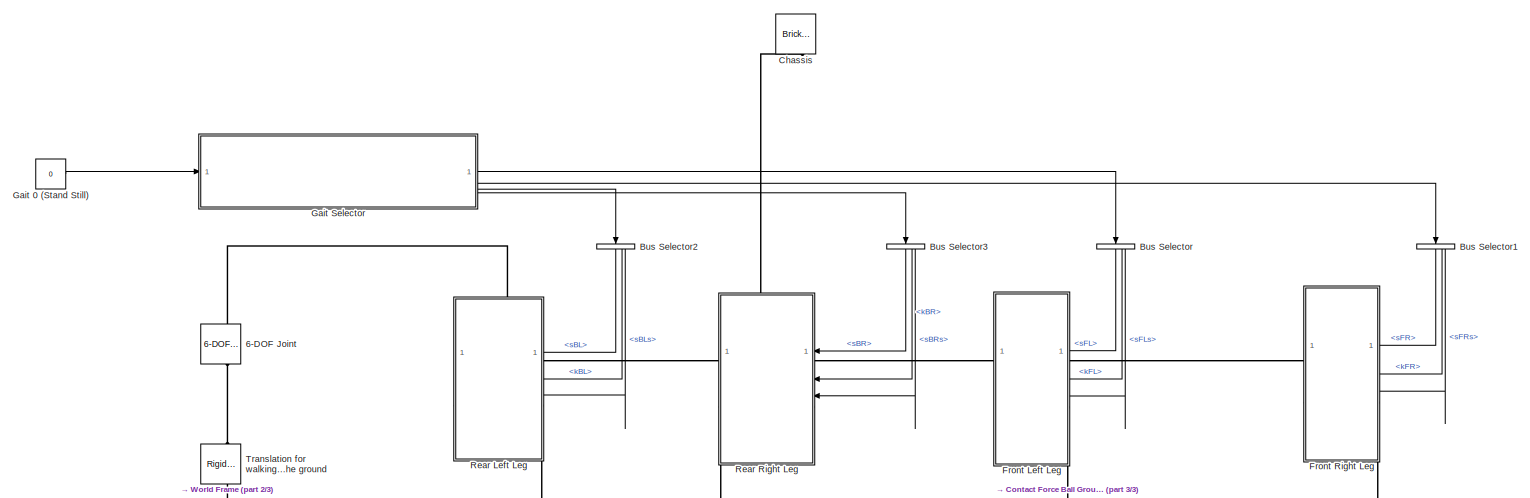
[diagram: root canvas - part 1/3, full width, top band]
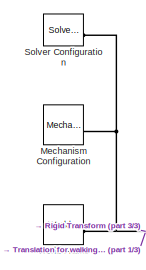
[diagram: root canvas - part 2/3, middle left region]
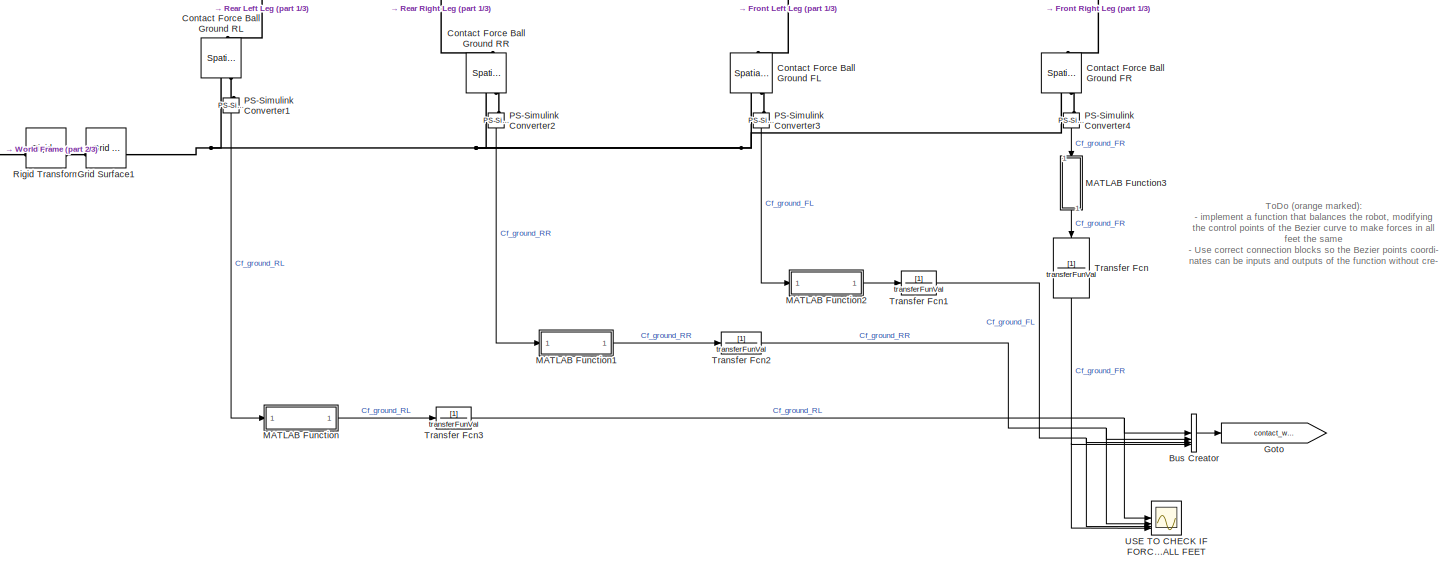
[diagram: root canvas - part 3/3, full width, bottom band]
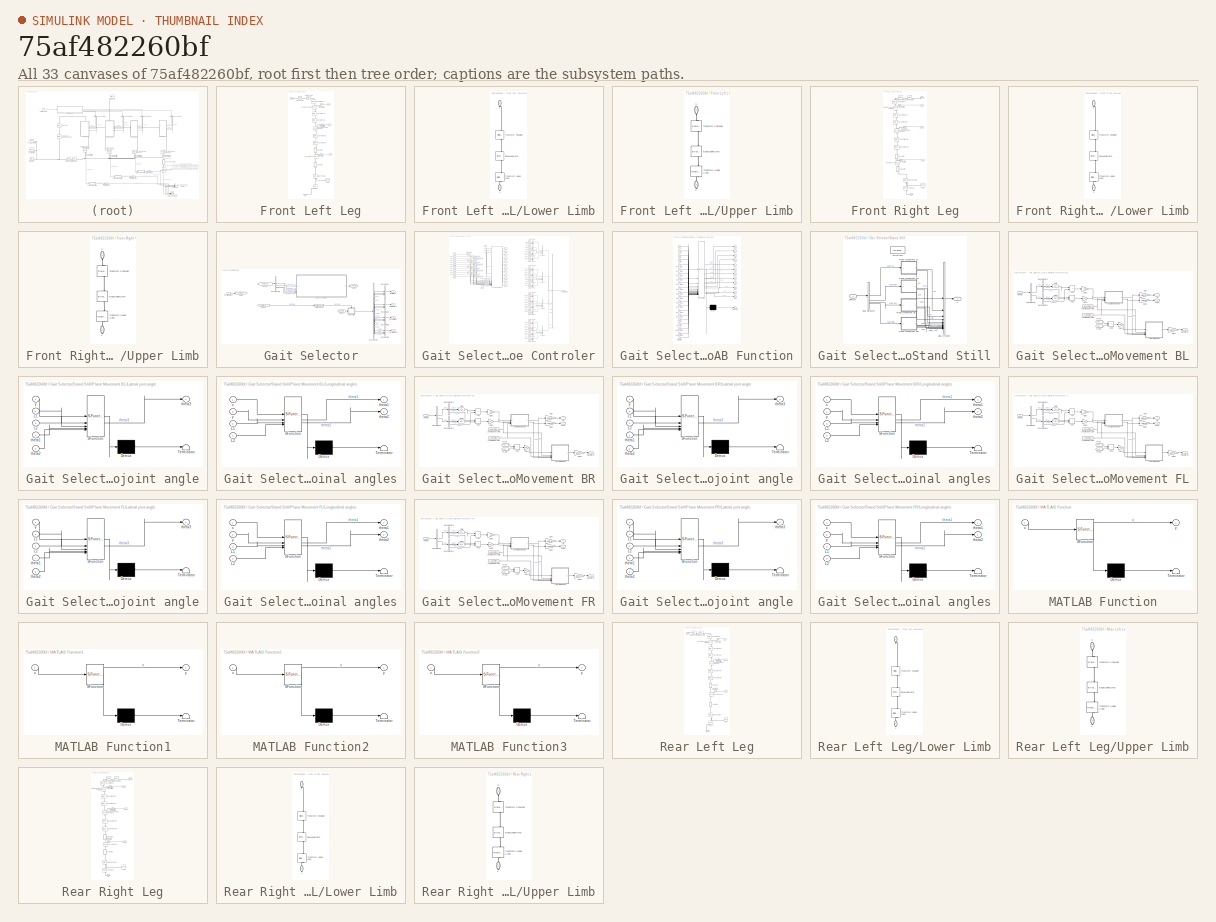
[diagram: thumbnail index - all 33 canvases of the model, root first then tree order]
MODEL slx_75af482260bf
KIND model
CONFIG AbsTol = 1e-3
CONFIG EnableMultiTasking = on
CONFIG FixedStep = auto
CONFIG InitFcn = run('Parameters_pntcld.m');
CONFIG MaxStep = auto
CONFIG MinStep = auto
CONFIG RelTol = 1e-3
CONFIG SampleTimeConstraint = Unconstrained
CONFIG SolverName = ode23t
CONFIG StartTime = 0.0
CONFIG StopTime = 6
WORKSPACE source: mxarray member
WORKSPACE A = 0.4
WORKSPACE Critical_Velocity = 0.01
WORKSPACE Damping_Factor = 1000
WORKSPACE Dynamic_Friction = 0.5
WORKSPACE Heigth_brick: Simulink.Parameter (value not decoded)
WORKSPACE Heigth_ramp: Simulink.Parameter (value not decoded)
WORKSPACE Length_brick: Simulink.Parameter (value not decoded)
WORKSPACE Length_ramp: Simulink.Parameter (value not decoded)
WORKSPACE Length_torso: Simulink.Parameter (value not decoded)
WORKSPACE Lower_limbs: Simulink.Parameter (value not decoded)
WORKSPACE Static_Friction = 0.7
WORKSPACE Stiffnesscoefficient = 10000
WORKSPACE Transition_Region_Width = 0.02
WORKSPACE Upper_limbs: Simulink.Parameter (value not decoded)
WORKSPACE Width_brick: Simulink.Parameter (value not decoded)
WORKSPACE Width_ramp: Simulink.Parameter (value not decoded)
WORKSPACE Width_torso: Simulink.Parameter (value not decoded)
WORKSPACE f = 1.5
WORKSPACE max_Joint_change = 100
WORKSPACE r_foot: Simulink.Parameter (value not decoded)
WORKSPACE sampleTime: Simulink.Parameter (value not decoded)
WORKSPACE t_leg: Simulink.Parameter (value not decoded)
WORKSPACE theta: Simulink.Parameter (value not decoded)
WORKSPACE transferFunVal: Simulink.Parameter (value not decoded)
BLOCK [Reference] 6-DOF Joint  REF=sm_lib/Joints/6-DOF Joint
  NameLocation = right
  SourceBlock = sm_lib/Joints/6-DOF Joint
  SourceType = 6-DOF Joint
BLOCK [BusCreator] Bus Creator
  DisplayOption = bar
  InheritFromInputs = on
  Inputs = 4
BLOCK [BusSelector] Bus Selector
  NameLocation = left
  OutputSignals = sFL,kFL,sFLs
BLOCK [BusSelector] Bus Selector1
  NameLocation = left
  OutputSignals = sFR,kFR,sFRs
BLOCK [BusSelector] Bus Selector2
  NameLocation = left
  OutputSignals = sBL,kBL,sBLs
BLOCK [BusSelector] Bus Selector3
  NameLocation = left
  OutputSignals = sBR,kBR,sBRs
BLOCK [Reference] Chassis  REF=sm_lib/Body Elements/Brick Solid
  NameLocation = right
  SourceBlock = sm_lib/Body Elements/Brick Solid
  SourceType = Brick Solid
BLOCK [Reference] Contact Force Ball Ground FL  REF=sm_lib/Forces and
Torques/Spatial
Contact Force
  NameLocation = right
  SourceBlock = sm_lib/Forces and\nTorques/Spatial\nContact Force
  SourceType = Spatial\nContact Force
BLOCK [Reference] Contact Force Ball Ground FR  REF=sm_lib/Forces and
Torques/Spatial
Contact Force
  NameLocation = right
  SourceBlock = sm_lib/Forces and\nTorques/Spatial\nContact Force
  SourceType = Spatial\nContact Force
BLOCK [Reference] Contact Force Ball Ground RL  REF=sm_lib/Forces and
Torques/Spatial
Contact Force
  NameLocation = left
  SourceBlock = sm_lib/Forces and\nTorques/Spatial\nContact Force
  SourceType = Spatial\nContact Force
BLOCK [Reference] Contact Force Ball Ground RR  REF=sm_lib/Forces and
Torques/Spatial
Contact Force
  NameLocation = right
  SourceBlock = sm_lib/Forces and\nTorques/Spatial\nContact Force
  SourceType = Spatial\nContact Force
BLOCK [SubSystem] Front Left Leg
  PortSchema = {"entries":[{"content":{"sides":[{"content":{},"type":"ConnectorPlacement.EquallySpacedRectSide","uuid":"4058ee2b-9772-4aa9-ad2c-dc188ae6aecd"},{"content":{"connectorIds":["In1","In2","In3"],"side":"RIGHT"},"type":"ConnectorPlacement.EquallySpacedRectSide","uuid":"c8f5ac60-63ea-4dfe-ad35-3ef8c1bdb1d6"},{"content":{"connectorIds":["LConn1"],"side":"TOP"},"type":"ConnectorPlacement.EquallySpacedRect...<+389ch>
BLOCK [Inport] Front Left Leg/<kFL>
  NameLocation = top
  Port = 2
BLOCK [Inport] Front Left Leg/<sFL>
  NameLocation = top
BLOCK [Inport] Front Left Leg/<sFLs>
  NameLocation = top
  Port = 3
BLOCK [Reference] Front Left Leg/Ball1  REF=sm_lib/Body Elements/Spherical Solid
  SourceBlock = sm_lib/Body Elements/Spherical Solid
  SourceType = Spherical Solid
BLOCK [PMIOPort] Front Left Leg/Conn1
  Side = Left
BLOCK [PMIOPort] Front Left Leg/FL
  Port = 2
  Side = Right
BLOCK [SubSystem] Front Left Leg/Lower Limb
  NameLocation = left
BLOCK [Reference] Front Left Leg/Lower Limb/BaseLowerLimb  REF=sm_lib/Body Elements/Brick Solid
  NameLocation = left
  SourceBlock = sm_lib/Body Elements/Brick Solid
  SourceType = Brick Solid
BLOCK [PMIOPort] Front Left Leg/Lower Limb/L
  NameLocation = left
  Port = 2
  Side = Right
BLOCK [Reference] Front Left Leg/Lower Limb/Transform Shoulder  REF=sm_lib/Frames and
Transforms/Rigid
Transform
  NameLocation = left
  SourceBlock = sm_lib/Frames and\nTransforms/Rigid\nTransform
  SourceType = Rigid\nTransform
BLOCK [Reference] Front Left Leg/Lower Limb/Transform Upper Knee  REF=sm_lib/Frames and
Transforms/Rigid
Transform
  NameLocation = left
  SourceBlock = sm_lib/Frames and\nTransforms/Rigid\nTransform
  SourceType = Rigid\nTransform
BLOCK [PMIOPort] Front Left Leg/Lower Limb/U
  NameLocation = left
  Side = Left
BLOCK [Reference] Front Left Leg/Point Cloud  REF=sm_lib/Curves and Surfaces/Point Cloud
  NameLocation = left
  SourceBlock = sm_lib/Curves and Surfaces/Point Cloud
  SourceType = Point Cloud
BLOCK [Reference] Front Left Leg/Revolute Knee1  REF=sm_lib/Joints/Revolute Joint
  NameLocation = left
  SourceBlock = sm_lib/Joints/Revolute Joint
  SourceType = Revolute Joint
BLOCK [Reference] Front Left Leg/Revolute Shoulder Sideways  REF=sm_lib/Joints/Revolute Joint
  NameLocation = left
  SourceBlock = sm_lib/Joints/Revolute Joint
  SourceType = Revolute Joint
BLOCK [Reference] Front Left Leg/Revolute Shoulder1  REF=sm_lib/Joints/Revolute Joint
  NameLocation = left
  SourceBlock = sm_lib/Joints/Revolute Joint
  SourceType = Revolute Joint
BLOCK [Reference] Front Left Leg/Rigid Transform  REF=sm_lib/Frames and
Transforms/Rigid
Transform
  SourceBlock = sm_lib/Frames and\nTransforms/Rigid\nTransform
  SourceType = Rigid\nTransform
BLOCK [Reference] Front Left Leg/Rigid Transform1  REF=sm_lib/Frames and
Transforms/Rigid
Transform
  SourceBlock = sm_lib/Frames and\nTransforms/Rigid\nTransform
  SourceType = Rigid\nTransform
BLOCK [Reference] Front Left Leg/Rigid Transform4  REF=sm_lib/Frames and
Transforms/Rigid
Transform
  NameLocation = left
  SourceBlock = sm_lib/Frames and\nTransforms/Rigid\nTransform
  SourceType = Rigid\nTransform
BLOCK [Reference] Front Left Leg/Simulink-PS Converter  REF=nesl_utility/Simulink-PS
Converter
  NameLocation = top
  SourceBlock = nesl_utility/Simulink-PS\nConverter
  SourceType = Simulink-PS\nConverter
BLOCK [Reference] Front Left Leg/Simulink-PS Converter1  REF=nesl_utility/Simulink-PS
Converter
  NameLocation = top
  SourceBlock = nesl_utility/Simulink-PS\nConverter
  SourceType = Simulink-PS\nConverter
BLOCK [Reference] Front Left Leg/Simulink-PS Converter2  REF=nesl_utility/Simulink-PS
Converter
  NameLocation = top
  SourceBlock = nesl_utility/Simulink-PS\nConverter
  SourceType = Simulink-PS\nConverter
BLOCK [Reference] Front Left Leg/Transform Pivot1  REF=sm_lib/Frames and
Transforms/Rigid
Transform
  NameLocation = left
  SourceBlock = sm_lib/Frames and\nTransforms/Rigid\nTransform
  SourceType = Rigid\nTransform
BLOCK [Reference] Front Left Leg/Transform Pivot2  REF=sm_lib/Frames and
Transforms/Rigid
Transform
  NameLocation = left
  SourceBlock = sm_lib/Frames and\nTransforms/Rigid\nTransform
  SourceType = Rigid\nTransform
BLOCK [Reference] Front Left Leg/Transform Pivot3  REF=sm_lib/Frames and
Transforms/Rigid
Transform
  NameLocation = left
  SourceBlock = sm_lib/Frames and\nTransforms/Rigid\nTransform
  SourceType = Rigid\nTransform
BLOCK [Reference] Front Left Leg/Transform Pivot4  REF=sm_lib/Frames and
Transforms/Rigid
Transform
  NameLocation = left
  SourceBlock = sm_lib/Frames and\nTransforms/Rigid\nTransform
  SourceType = Rigid\nTransform
BLOCK [Reference] Front Left Leg/Transform Pivot5  REF=sm_lib/Frames and
Transforms/Rigid
Transform
  NameLocation = left
  SourceBlock = sm_lib/Frames and\nTransforms/Rigid\nTransform
  SourceType = Rigid\nTransform
BLOCK [SubSystem] Front Left Leg/Upper Limb
  NameLocation = left
BLOCK [Reference] Front Left Leg/Upper Limb/BaseUpperLimb  REF=sm_lib/Body Elements/Brick Solid
  NameLocation = left
  SourceBlock = sm_lib/Body Elements/Brick Solid
  SourceType = Brick Solid
BLOCK [PMIOPort] Front Left Leg/Upper Limb/L
  NameLocation = left
  Port = 2
  Side = Right
BLOCK [Reference] Front Left Leg/Upper Limb/Transform Shoulder  REF=sm_lib/Frames and
Transforms/Rigid
Transform
  NameLocation = left
  SourceBlock = sm_lib/Frames and\nTransforms/Rigid\nTransform
  SourceType = Rigid\nTransform
BLOCK [Reference] Front Left Leg/Upper Limb/Transform Upper Knee  REF=sm_lib/Frames and
Transforms/Rigid
Transform
  NameLocation = left
  SourceBlock = sm_lib/Frames and\nTransforms/Rigid\nTransform
  SourceType = Rigid\nTransform
BLOCK [PMIOPort] Front Left Leg/Upper Limb/U
  NameLocation = left
  Side = Left
BLOCK [SubSystem] Front Right Leg
  PortSchema = {"entries":[{"content":{"sides":[{"content":{},"type":"ConnectorPlacement.EquallySpacedRectSide","uuid":"fca64d86-67f1-4a47-b694-02d00a22e122"},{"content":{"connectorIds":["In1","In2","In3"],"side":"RIGHT"},"type":"ConnectorPlacement.EquallySpacedRectSide","uuid":"d4cf8dbd-fa25-4269-9c1c-acf7c5454620"},{"content":{"connectorIds":["LConn1"],"side":"TOP"},"type":"ConnectorPlacement.EquallySpacedRect...<+389ch>
BLOCK [Inport] Front Right Leg/<kFR>
  NameLocation = top
  Port = 2
BLOCK [Inport] Front Right Leg/<sFR>
  NameLocation = top
BLOCK [Inport] Front Right Leg/<sFRs>
  NameLocation = top
  Port = 3
BLOCK [Reference] Front Right Leg/Ball1  REF=sm_lib/Body Elements/Spherical Solid
  SourceBlock = sm_lib/Body Elements/Spherical Solid
  SourceType = Spherical Solid
BLOCK [PMIOPort] Front Right Leg/Conn1
  Side = Left
BLOCK [PMIOPort] Front Right Leg/FR
  Port = 2
  Side = Right
BLOCK [SubSystem] Front Right Leg/Lower Limb
  NameLocation = left
BLOCK [Reference] Front Right Leg/Lower Limb/BaseLowerLimb  REF=sm_lib/Body Elements/Brick Solid
  NameLocation = left
  SourceBlock = sm_lib/Body Elements/Brick Solid
  SourceType = Brick Solid
BLOCK [PMIOPort] Front Right Leg/Lower Limb/L
  NameLocation = left
  Port = 2
  Side = Right
BLOCK [Reference] Front Right Leg/Lower Limb/Transform Shoulder  REF=sm_lib/Frames and
Transforms/Rigid
Transform
  NameLocation = left
  SourceBlock = sm_lib/Frames and\nTransforms/Rigid\nTransform
  SourceType = Rigid\nTransform
BLOCK [Reference] Front Right Leg/Lower Limb/Transform Upper Knee  REF=sm_lib/Frames and
Transforms/Rigid
Transform
  NameLocation = left
  SourceBlock = sm_lib/Frames and\nTransforms/Rigid\nTransform
  SourceType = Rigid\nTransform
BLOCK [PMIOPort] Front Right Leg/Lower Limb/U
  NameLocation = left
  Side = Left
BLOCK [Reference] Front Right Leg/Point Cloud  REF=sm_lib/Curves and Surfaces/Point Cloud
  NameLocation = left
  SourceBlock = sm_lib/Curves and Surfaces/Point Cloud
  SourceType = Point Cloud
BLOCK [Reference] Front Right Leg/Revolute Knee  REF=sm_lib/Joints/Revolute Joint
  NameLocation = left
  SourceBlock = sm_lib/Joints/Revolute Joint
  SourceType = Revolute Joint
BLOCK [Reference] Front Right Leg/Revolute Shoulder Forward  REF=sm_lib/Joints/Revolute Joint
  NameLocation = left
  SourceBlock = sm_lib/Joints/Revolute Joint
  SourceType = Revolute Joint
BLOCK [Reference] Front Right Leg/Revolute Shoulder Sideways  REF=sm_lib/Joints/Revolute Joint
  NameLocation = left
  SourceBlock = sm_lib/Joints/Revolute Joint
  SourceType = Revolute Joint
BLOCK [Reference] Front Right Leg/Rigid Transform1  REF=sm_lib/Frames and
Transforms/Rigid
Transform
  SourceBlock = sm_lib/Frames and\nTransforms/Rigid\nTransform
  SourceType = Rigid\nTransform
BLOCK [Reference] Front Right Leg/Rigid Transform2  REF=sm_lib/Frames and
Transforms/Rigid
Transform
  NameLocation = top
  SourceBlock = sm_lib/Frames and\nTransforms/Rigid\nTransform
  SourceType = Rigid\nTransform
BLOCK [Reference] Front Right Leg/Rigid Transform4  REF=sm_lib/Frames and
Transforms/Rigid
Transform
  NameLocation = left
  SourceBlock = sm_lib/Frames and\nTransforms/Rigid\nTransform
  SourceType = Rigid\nTransform
BLOCK [Reference] Front Right Leg/Simulink-PS Converter1  REF=nesl_utility/Simulink-PS
Converter
  NameLocation = top
  SourceBlock = nesl_utility/Simulink-PS\nConverter
  SourceType = Simulink-PS\nConverter
BLOCK [Reference] Front Right Leg/Simulink-PS Converter2  REF=nesl_utility/Simulink-PS
Converter
  NameLocation = top
  SourceBlock = nesl_utility/Simulink-PS\nConverter
  SourceType = Simulink-PS\nConverter
BLOCK [Reference] Front Right Leg/Simulink-PS Converter3  REF=nesl_utility/Simulink-PS
Converter
  NameLocation = top
  SourceBlock = nesl_utility/Simulink-PS\nConverter
  SourceType = Simulink-PS\nConverter
BLOCK [Reference] Front Right Leg/Transform Pivot  REF=sm_lib/Frames and
Transforms/Rigid
Transform
  NameLocation = left
  SourceBlock = sm_lib/Frames and\nTransforms/Rigid\nTransform
  SourceType = Rigid\nTransform
BLOCK [Reference] Front Right Leg/Transform Pivot2  REF=sm_lib/Frames and
Transforms/Rigid
Transform
  NameLocation = left
  SourceBlock = sm_lib/Frames and\nTransforms/Rigid\nTransform
  SourceType = Rigid\nTransform
BLOCK [Reference] Front Right Leg/Transform Pivot3  REF=sm_lib/Frames and
Transforms/Rigid
Transform
  NameLocation = left
  SourceBlock = sm_lib/Frames and\nTransforms/Rigid\nTransform
  SourceType = Rigid\nTransform
BLOCK [Reference] Front Right Leg/Transform Pivot4  REF=sm_lib/Frames and
Transforms/Rigid
Transform
  NameLocation = left
  SourceBlock = sm_lib/Frames and\nTransforms/Rigid\nTransform
  SourceType = Rigid\nTransform
BLOCK [Reference] Front Right Leg/Transform Pivot5  REF=sm_lib/Frames and
Transforms/Rigid
Transform
  NameLocation = left
  SourceBlock = sm_lib/Frames and\nTransforms/Rigid\nTransform
  SourceType = Rigid\nTransform
BLOCK [SubSystem] Front Right Leg/Upper Limb
  NameLocation = left
BLOCK [Reference] Front Right Leg/Upper Limb/BaseUpperLimb  REF=sm_lib/Body Elements/Brick Solid
  NameLocation = left
  SourceBlock = sm_lib/Body Elements/Brick Solid
  SourceType = Brick Solid
BLOCK [PMIOPort] Front Right Leg/Upper Limb/L
  NameLocation = left
  Port = 2
  Side = Right
BLOCK [Reference] Front Right Leg/Upper Limb/Transform Shoulder  REF=sm_lib/Frames and
Transforms/Rigid
Transform
  NameLocation = left
  SourceBlock = sm_lib/Frames and\nTransforms/Rigid\nTransform
  SourceType = Rigid\nTransform
BLOCK [Reference] Front Right Leg/Upper Limb/Transform Upper Knee  REF=sm_lib/Frames and
Transforms/Rigid
Transform
  NameLocation = left
  SourceBlock = sm_lib/Frames and\nTransforms/Rigid\nTransform
  SourceType = Rigid\nTransform
BLOCK [PMIOPort] Front Right Leg/Upper Limb/U
  NameLocation = left
  Side = Left
BLOCK [Constant] Gait 0 (Stand Still)
  Value = 0
BLOCK [SubSystem] Gait Selector
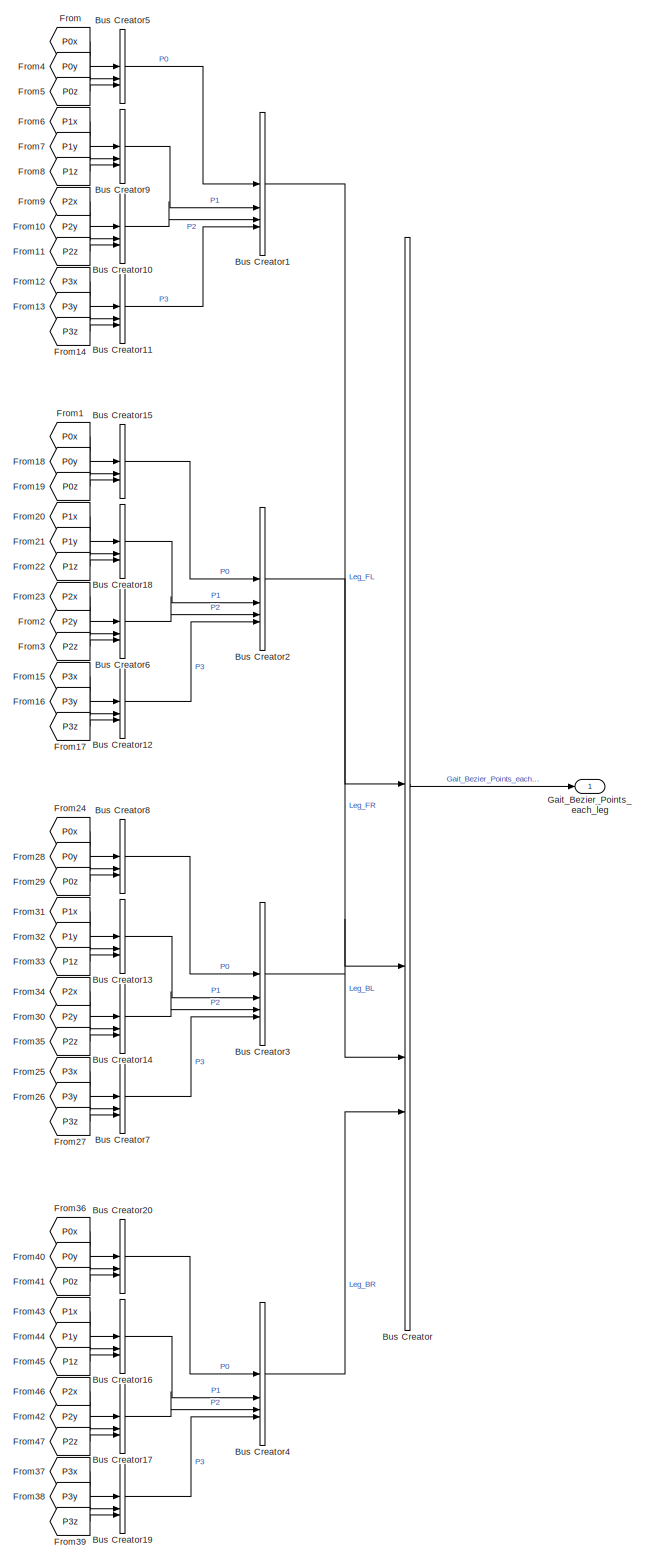
[diagram: Gait Selector/Balance Controler - part 1/2, right side, full height]
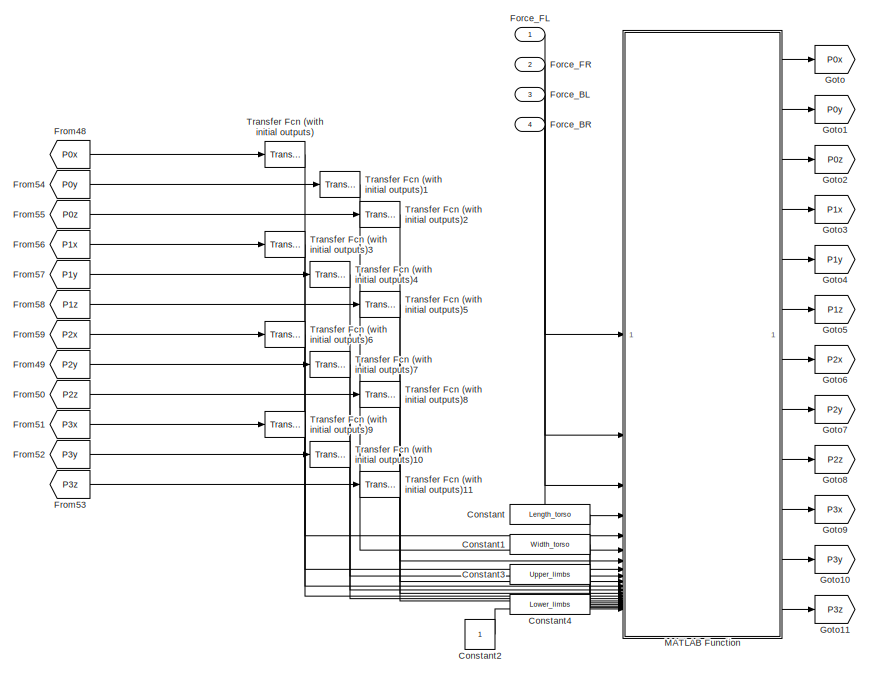
[diagram: Gait Selector/Balance Controler - part 2/2, top left region]
BLOCK [SubSystem] Gait Selector/Balance Controler
BLOCK [BusCreator] Gait Selector/Balance Controler/Bus Creator
  DisplayOption = bar
  InheritFromInputs = on
  Inputs = 4
BLOCK [BusCreator] Gait Selector/Balance Controler/Bus Creator1
  DisplayOption = bar
  InheritFromInputs = on
  Inputs = 4
BLOCK [BusCreator] Gait Selector/Balance Controler/Bus Creator10
  DisplayOption = bar
  InheritFromInputs = on
  Inputs = 3
BLOCK [BusCreator] Gait Selector/Balance Controler/Bus Creator11
  DisplayOption = bar
  InheritFromInputs = on
  Inputs = 3
BLOCK [BusCreator] Gait Selector/Balance Controler/Bus Creator12
  DisplayOption = bar
  InheritFromInputs = on
  Inputs = 3
BLOCK [BusCreator] Gait Selector/Balance Controler/Bus Creator13
  DisplayOption = bar
  InheritFromInputs = on
  Inputs = 3
BLOCK [BusCreator] Gait Selector/Balance Controler/Bus Creator14
  DisplayOption = bar
  InheritFromInputs = on
  Inputs = 3
BLOCK [BusCreator] Gait Selector/Balance Controler/Bus Creator15
  DisplayOption = bar
  InheritFromInputs = on
  Inputs = 3
BLOCK [BusCreator] Gait Selector/Balance Controler/Bus Creator16
  DisplayOption = bar
  InheritFromInputs = on
  Inputs = 3
BLOCK [BusCreator] Gait Selector/Balance Controler/Bus Creator17
  DisplayOption = bar
  InheritFromInputs = on
  Inputs = 3
BLOCK [BusCreator] Gait Selector/Balance Controler/Bus Creator18
  DisplayOption = bar
  InheritFromInputs = on
  Inputs = 3
BLOCK [BusCreator] Gait Selector/Balance Controler/Bus Creator19
  DisplayOption = bar
  InheritFromInputs = on
  Inputs = 3
BLOCK [BusCreator] Gait Selector/Balance Controler/Bus Creator2
  DisplayOption = bar
  InheritFromInputs = on
  Inputs = 4
BLOCK [BusCreator] Gait Selector/Balance Controler/Bus Creator20
  DisplayOption = bar
  InheritFromInputs = on
  Inputs = 3
BLOCK [BusCreator] Gait Selector/Balance Controler/Bus Creator3
  DisplayOption = bar
  InheritFromInputs = on
  Inputs = 4
BLOCK [BusCreator] Gait Selector/Balance Controler/Bus Creator4
  DisplayOption = bar
  InheritFromInputs = on
  Inputs = 4
BLOCK [BusCreator] Gait Selector/Balance Controler/Bus Creator5
  DisplayOption = bar
  InheritFromInputs = on
  Inputs = 3
BLOCK [BusCreator] Gait Selector/Balance Controler/Bus Creator6
  DisplayOption = bar
  InheritFromInputs = on
  Inputs = 3
BLOCK [BusCreator] Gait Selector/Balance Controler/Bus Creator7
  DisplayOption = bar
  InheritFromInputs = on
  Inputs = 3
BLOCK [BusCreator] Gait Selector/Balance Controler/Bus Creator8
  DisplayOption = bar
  InheritFromInputs = on
  Inputs = 3
BLOCK [BusCreator] Gait Selector/Balance Controler/Bus Creator9
  DisplayOption = bar
  InheritFromInputs = on
  Inputs = 3
BLOCK [Constant] Gait Selector/Balance Controler/Constant
  Value = Length_torso
BLOCK [Constant] Gait Selector/Balance Controler/Constant1
  Value = Width_torso
BLOCK [Constant] Gait Selector/Balance Controler/Constant2
BLOCK [Constant] Gait Selector/Balance Controler/Constant3
  Value = Upper_limbs
BLOCK [Constant] Gait Selector/Balance Controler/Constant4
  Value = Lower_limbs
BLOCK [Inport] Gait Selector/Balance Controler/Force_BL
  Port = 3
BLOCK [Inport] Gait Selector/Balance Controler/Force_BR
  Port = 4
BLOCK [Inport] Gait Selector/Balance Controler/Force_FL
BLOCK [Inport] Gait Selector/Balance Controler/Force_FR
  Port = 2
BLOCK [From] Gait Selector/Balance Controler/From
  GotoTag = P0x
BLOCK [From] Gait Selector/Balance Controler/From1
  GotoTag = P0x
BLOCK [From] Gait Selector/Balance Controler/From10
  GotoTag = P2y
BLOCK [From] Gait Selector/Balance Controler/From11
  GotoTag = P2z
BLOCK [From] Gait Selector/Balance Controler/From12
  GotoTag = P3x
BLOCK [From] Gait Selector/Balance Controler/From13
  GotoTag = P3y
BLOCK [From] Gait Selector/Balance Controler/From14
  GotoTag = P3z
BLOCK [From] Gait Selector/Balance Controler/From15
  GotoTag = P3x
BLOCK [From] Gait Selector/Balance Controler/From16
  GotoTag = P3y
BLOCK [From] Gait Selector/Balance Controler/From17
  GotoTag = P3z
BLOCK [From] Gait Selector/Balance Controler/From18
  GotoTag = P0y
BLOCK [From] Gait Selector/Balance Controler/From19
  GotoTag = P0z
BLOCK [From] Gait Selector/Balance Controler/From2
  GotoTag = P2y
BLOCK [From] Gait Selector/Balance Controler/From20
  GotoTag = P1x
BLOCK [From] Gait Selector/Balance Controler/From21
  GotoTag = P1y
BLOCK [From] Gait Selector/Balance Controler/From22
  GotoTag = P1z
BLOCK [From] Gait Selector/Balance Controler/From23
  GotoTag = P2x
BLOCK [From] Gait Selector/Balance Controler/From24
  GotoTag = P0x
BLOCK [From] Gait Selector/Balance Controler/From25
  GotoTag = P3x
BLOCK [From] Gait Selector/Balance Controler/From26
  GotoTag = P3y
BLOCK [From] Gait Selector/Balance Controler/From27
  GotoTag = P3z
BLOCK [From] Gait Selector/Balance Controler/From28
  GotoTag = P0y
BLOCK [From] Gait Selector/Balance Controler/From29
  GotoTag = P0z
BLOCK [From] Gait Selector/Balance Controler/From3
  GotoTag = P2z
BLOCK [From] Gait Selector/Balance Controler/From30
  GotoTag = P2y
BLOCK [From] Gait Selector/Balance Controler/From31
  GotoTag = P1x
BLOCK [From] Gait Selector/Balance Controler/From32
  GotoTag = P1y
BLOCK [From] Gait Selector/Balance Controler/From33
  GotoTag = P1z
BLOCK [From] Gait Selector/Balance Controler/From34
  GotoTag = P2x
BLOCK [From] Gait Selector/Balance Controler/From35
  GotoTag = P2z
BLOCK [From] Gait Selector/Balance Controler/From36
  GotoTag = P0x
BLOCK [From] Gait Selector/Balance Controler/From37
  GotoTag = P3x
BLOCK [From] Gait Selector/Balance Controler/From38
  GotoTag = P3y
BLOCK [From] Gait Selector/Balance Controler/From39
  GotoTag = P3z
BLOCK [From] Gait Selector/Balance Controler/From4
  GotoTag = P0y
BLOCK [From] Gait Selector/Balance Controler/From40
  GotoTag = P0y
BLOCK [From] Gait Selector/Balance Controler/From41
  GotoTag = P0z
BLOCK [From] Gait Selector/Balance Controler/From42
  GotoTag = P2y
BLOCK [From] Gait Selector/Balance Controler/From43
  GotoTag = P1x
BLOCK [From] Gait Selector/Balance Controler/From44
  GotoTag = P1y
BLOCK [From] Gait Selector/Balance Controler/From45
  GotoTag = P1z
BLOCK [From] Gait Selector/Balance Controler/From46
  GotoTag = P2x
BLOCK [From] Gait Selector/Balance Controler/From47
  GotoTag = P2z
BLOCK [From] Gait Selector/Balance Controler/From48
  GotoTag = P0x
BLOCK [From] Gait Selector/Balance Controler/From49
  GotoTag = P2y
BLOCK [From] Gait Selector/Balance Controler/From5
  GotoTag = P0z
BLOCK [From] Gait Selector/Balance Controler/From50
  GotoTag = P2z
BLOCK [From] Gait Selector/Balance Controler/From51
  GotoTag = P3x
BLOCK [From] Gait Selector/Balance Controler/From52
  GotoTag = P3y
BLOCK [From] Gait Selector/Balance Controler/From53
  GotoTag = P3z
BLOCK [From] Gait Selector/Balance Controler/From54
  GotoTag = P0y
BLOCK [From] Gait Selector/Balance Controler/From55
  GotoTag = P0z
BLOCK [From] Gait Selector/Balance Controler/From56
  GotoTag = P1x
BLOCK [From] Gait Selector/Balance Controler/From57
  GotoTag = P1y
BLOCK [From] Gait Selector/Balance Controler/From58
  GotoTag = P1z
BLOCK [From] Gait Selector/Balance Controler/From59
  GotoTag = P2x
BLOCK [From] Gait Selector/Balance Controler/From6
  GotoTag = P1x
BLOCK [From] Gait Selector/Balance Controler/From7
  GotoTag = P1y
BLOCK [From] Gait Selector/Balance Controler/From8
  GotoTag = P1z
BLOCK [From] Gait Selector/Balance Controler/From9
  GotoTag = P2x
BLOCK [Outport] Gait Selector/Balance Controler/Gait_Bezier_Points_each_leg
BLOCK [Goto] Gait Selector/Balance Controler/Goto
  GotoTag = P0x
BLOCK [Goto] Gait Selector/Balance Controler/Goto1
  GotoTag = P0y
BLOCK [Goto] Gait Selector/Balance Controler/Goto10
  GotoTag = P3y
BLOCK [Goto] Gait Selector/Balance Controler/Goto11
  GotoTag = P3z
BLOCK [Goto] Gait Selector/Balance Controler/Goto2
  GotoTag = P0z
BLOCK [Goto] Gait Selector/Balance Controler/Goto3
  GotoTag = P1x
BLOCK [Goto] Gait Selector/Balance Controler/Goto4
  GotoTag = P1y
BLOCK [Goto] Gait Selector/Balance Controler/Goto5
  GotoTag = P1z
BLOCK [Goto] Gait Selector/Balance Controler/Goto6
  GotoTag = P2x
BLOCK [Goto] Gait Selector/Balance Controler/Goto7
  GotoTag = P2y
BLOCK [Goto] Gait Selector/Balance Controler/Goto8
  GotoTag = P2z
BLOCK [Goto] Gait Selector/Balance Controler/Goto9
  GotoTag = P3x
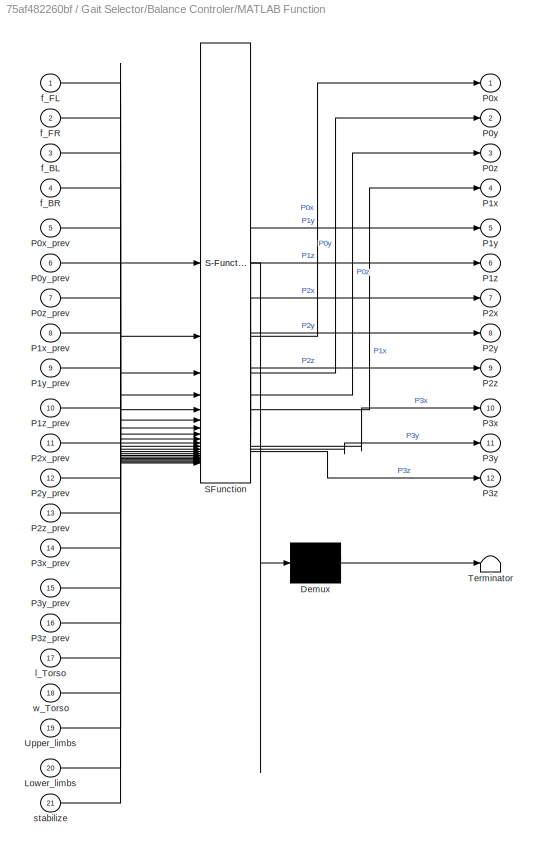
BLOCK [SubSystem] Gait Selector/Balance Controler/MATLAB Function
  ErrorFcn = Stateflow.Translate.translate
  PermitHierarchicalResolution = ExplicitOnly
  SFBlockType = MATLAB Function
  TreatAsAtomicUnit = on
BLOCK [Demux] Gait Selector/Balance Controler/MATLAB Function/ Demux 
  Outputs = 1
BLOCK [S-Function] Gait Selector/Balance Controler/MATLAB Function/ SFunction 
  EnableBusSupport = on
  FunctionName = sf_sfun
  PortCounts = [21 13]
  SFcnIsStateOwnerBlock = off
  SFunctionDeploymentMode = off
  Tag = Stateflow S-Function 6
BLOCK [Terminator] Gait Selector/Balance Controler/MATLAB Function/ Terminator 
BLOCK [Inport] Gait Selector/Balance Controler/MATLAB Function/Lower_limbs
  Port = 20
BLOCK [Outport] Gait Selector/Balance Controler/MATLAB Function/P0x
BLOCK [Inport] Gait Selector/Balance Controler/MATLAB Function/P0x_prev
  Port = 5
BLOCK [Outport] Gait Selector/Balance Controler/MATLAB Function/P0y
  Port = 2
BLOCK [Inport] Gait Selector/Balance Controler/MATLAB Function/P0y_prev
  Port = 6
BLOCK [Outport] Gait Selector/Balance Controler/MATLAB Function/P0z
  Port = 3
BLOCK [Inport] Gait Selector/Balance Controler/MATLAB Function/P0z_prev
  Port = 7
BLOCK [Outport] Gait Selector/Balance Controler/MATLAB Function/P1x
  Port = 4
BLOCK [Inport] Gait Selector/Balance Controler/MATLAB Function/P1x_prev
  Port = 8
BLOCK [Outport] Gait Selector/Balance Controler/MATLAB Function/P1y
  Port = 5
BLOCK [Inport] Gait Selector/Balance Controler/MATLAB Function/P1y_prev
  Port = 9
BLOCK [Outport] Gait Selector/Balance Controler/MATLAB Function/P1z
  Port = 6
BLOCK [Inport] Gait Selector/Balance Controler/MATLAB Function/P1z_prev
  Port = 10
BLOCK [Outport] Gait Selector/Balance Controler/MATLAB Function/P2x
  Port = 7
BLOCK [Inport] Gait Selector/Balance Controler/MATLAB Function/P2x_prev
  Port = 11
BLOCK [Outport] Gait Selector/Balance Controler/MATLAB Function/P2y
  Port = 8
BLOCK [Inport] Gait Selector/Balance Controler/MATLAB Function/P2y_prev
  Port = 12
BLOCK [Outport] Gait Selector/Balance Controler/MATLAB Function/P2z
  Port = 9
BLOCK [Inport] Gait Selector/Balance Controler/MATLAB Function/P2z_prev
  Port = 13
BLOCK [Outport] Gait Selector/Balance Controler/MATLAB Function/P3x
  Port = 10
BLOCK [Inport] Gait Selector/Balance Controler/MATLAB Function/P3x_prev
  Port = 14
BLOCK [Outport] Gait Selector/Balance Controler/MATLAB Function/P3y
  Port = 11
BLOCK [Inport] Gait Selector/Balance Controler/MATLAB Function/P3y_prev
  Port = 15
BLOCK [Outport] Gait Selector/Balance Controler/MATLAB Function/P3z
  Port = 12
BLOCK [Inport] Gait Selector/Balance Controler/MATLAB Function/P3z_prev
  Port = 16
BLOCK [Inport] Gait Selector/Balance Controler/MATLAB Function/Upper_limbs
  Port = 19
BLOCK [Inport] Gait Selector/Balance Controler/MATLAB Function/f_BL
  Port = 3
BLOCK [Inport] Gait Selector/Balance Controler/MATLAB Function/f_BR
  Port = 4
BLOCK [Inport] Gait Selector/Balance Controler/MATLAB Function/f_FL
BLOCK [Inport] Gait Selector/Balance Controler/MATLAB Function/f_FR
  Port = 2
BLOCK [Inport] Gait Selector/Balance Controler/MATLAB Function/l_Torso
  Port = 17
BLOCK [Inport] Gait Selector/Balance Controler/MATLAB Function/stabilize
  Port = 21
BLOCK [Inport] Gait Selector/Balance Controler/MATLAB Function/w_Torso
  Port = 18
BLOCK [Reference] Gait Selector/Balance Controler/Transfer Fcn (with initial outputs)  REF=simulink_extras/Additional
Linear/Transfer Fcn
(with initial outputs)
  SourceBlock = simulink_extras/Additional\nLinear/Transfer Fcn\n(with initial outputs)
  SourceType = Transfer Function with Initial Outputs
BLOCK [Reference] Gait Selector/Balance Controler/Transfer Fcn (with initial outputs)1  REF=simulink_extras/Additional
Linear/Transfer Fcn
(with initial outputs)
  SourceBlock = simulink_extras/Additional\nLinear/Transfer Fcn\n(with initial outputs)
  SourceType = Transfer Function with Initial Outputs
BLOCK [Reference] Gait Selector/Balance Controler/Transfer Fcn (with initial outputs)10  REF=simulink_extras/Additional
Linear/Transfer Fcn
(with initial outputs)
  SourceBlock = simulink_extras/Additional\nLinear/Transfer Fcn\n(with initial outputs)
  SourceType = Transfer Function with Initial Outputs
BLOCK [Reference] Gait Selector/Balance Controler/Transfer Fcn (with initial outputs)11  REF=simulink_extras/Additional
Linear/Transfer Fcn
(with initial outputs)
  SourceBlock = simulink_extras/Additional\nLinear/Transfer Fcn\n(with initial outputs)
  SourceType = Transfer Function with Initial Outputs
BLOCK [Reference] Gait Selector/Balance Controler/Transfer Fcn (with initial outputs)2  REF=simulink_extras/Additional
Linear/Transfer Fcn
(with initial outputs)
  SourceBlock = simulink_extras/Additional\nLinear/Transfer Fcn\n(with initial outputs)
  SourceType = Transfer Function with Initial Outputs
BLOCK [Reference] Gait Selector/Balance Controler/Transfer Fcn (with initial outputs)3  REF=simulink_extras/Additional
Linear/Transfer Fcn
(with initial outputs)
  SourceBlock = simulink_extras/Additional\nLinear/Transfer Fcn\n(with initial outputs)
  SourceType = Transfer Function with Initial Outputs
BLOCK [Reference] Gait Selector/Balance Controler/Transfer Fcn (with initial outputs)4  REF=simulink_extras/Additional
Linear/Transfer Fcn
(with initial outputs)
  SourceBlock = simulink_extras/Additional\nLinear/Transfer Fcn\n(with initial outputs)
  SourceType = Transfer Function with Initial Outputs
BLOCK [Reference] Gait Selector/Balance Controler/Transfer Fcn (with initial outputs)5  REF=simulink_extras/Additional
Linear/Transfer Fcn
(with initial outputs)
  SourceBlock = simulink_extras/Additional\nLinear/Transfer Fcn\n(with initial outputs)
  SourceType = Transfer Function with Initial Outputs
BLOCK [Reference] Gait Selector/Balance Controler/Transfer Fcn (with initial outputs)6  REF=simulink_extras/Additional
Linear/Transfer Fcn
(with initial outputs)
  SourceBlock = simulink_extras/Additional\nLinear/Transfer Fcn\n(with initial outputs)
  SourceType = Transfer Function with Initial Outputs
BLOCK [Reference] Gait Selector/Balance Controler/Transfer Fcn (with initial outputs)7  REF=simulink_extras/Additional
Linear/Transfer Fcn
(with initial outputs)
  SourceBlock = simulink_extras/Additional\nLinear/Transfer Fcn\n(with initial outputs)
  SourceType = Transfer Function with Initial Outputs
BLOCK [Reference] Gait Selector/Balance Controler/Transfer Fcn (with initial outputs)8  REF=simulink_extras/Additional
Linear/Transfer Fcn
(with initial outputs)
  SourceBlock = simulink_extras/Additional\nLinear/Transfer Fcn\n(with initial outputs)
  SourceType = Transfer Function with Initial Outputs
BLOCK [Reference] Gait Selector/Balance Controler/Transfer Fcn (with initial outputs)9  REF=simulink_extras/Additional
Linear/Transfer Fcn
(with initial outputs)
  SourceBlock = simulink_extras/Additional\nLinear/Transfer Fcn\n(with initial outputs)
  SourceType = Transfer Function with Initial Outputs
BLOCK [BusCreator] Gait Selector/Bus Creator
  DisplayOption = bar
  InheritFromInputs = on
  Inputs = 3
BLOCK [BusCreator] Gait Selector/Bus Creator1
  DisplayOption = bar
  InheritFromInputs = on
  Inputs = 3
BLOCK [BusCreator] Gait Selector/Bus Creator2
  DisplayOption = bar
  InheritFromInputs = on
  Inputs = 3
BLOCK [BusCreator] Gait Selector/Bus Creator3
  DisplayOption = bar
  InheritFromInputs = on
  Inputs = 3
BLOCK [BusSelector] Gait Selector/Bus Selector
  OutputSignals = sFL,kFL,sFLs,sFR,kFR,sFRs,sBL,kBL,sBLs,sBR,kBR,sBRs
BLOCK [BusSelector] Gait Selector/Bus Selector1
  OutputSignals = Cf_ground_FL,Cf_ground_FR,Cf_ground_RL,Cf_ground_RR
BLOCK [Inport] Gait Selector/Control Output
BLOCK [From] Gait Selector/From10
  GotoTag = Control_Output
BLOCK [From] Gait Selector/From21
  GotoTag = BPoints
BLOCK [From] Gait Selector/From38
  GotoTag = contact_with_grid
  TagVisibility = global
BLOCK [Goto] Gait Selector/Goto1
  GotoTag = Control_Output
BLOCK [Goto] Gait Selector/Goto4
  GotoTag = BPoints
BLOCK [SubSystem] Gait Selector/Stand Still
BLOCK [ActionPort] Gait Selector/Stand Still/Action Port
  ActionPortLabel = case [ 0 ]:
  InitializeStates = reset
BLOCK [Inport] Gait Selector/Stand Still/BPoints
BLOCK [BusCreator] Gait Selector/Stand Still/Bus Creator
  DisplayOption = bar
  InheritFromInputs = on
  Inputs = 12
BLOCK [BusSelector] Gait Selector/Stand Still/Bus Selector
  OutputSignals = Leg_FL,Leg_FR,Leg_BL,Leg_BR
BLOCK [SubSystem] Gait Selector/Stand Still/Plane Movement BL
BLOCK [Sum] Gait Selector/Stand Still/Plane Movement BL/Add
  IconShape = rectangular
BLOCK [Sum] Gait Selector/Stand Still/Plane Movement BL/Add1
  IconShape = rectangular
BLOCK [Sum] Gait Selector/Stand Still/Plane Movement BL/Add2
  IconShape = rectangular
BLOCK [Inport] Gait Selector/Stand Still/Plane Movement BL/BPoints
BLOCK [BusSelector] Gait Selector/Stand Still/Plane Movement BL/Bus Selector
  OutputSignals = P0,P3
BLOCK [BusSelector] Gait Selector/Stand Still/Plane Movement BL/Bus Selector1
  OutputSignals = P0x,P0y,P0z
BLOCK [BusSelector] Gait Selector/Stand Still/Plane Movement BL/Bus Selector4
  OutputSignals = P3x,P3y,P3z
BLOCK [From] Gait Selector/Stand Still/Plane Movement BL/From
  GotoTag = P0y
BLOCK [From] Gait Selector/Stand Still/Plane Movement BL/From1
  GotoTag = P3y
BLOCK [Gain] Gait Selector/Stand Still/Plane Movement BL/Gain
  Gain = 180/pi
BLOCK [Gain] Gait Selector/Stand Still/Plane Movement BL/Gain1
  Gain = -180/pi
BLOCK [Gain] Gait Selector/Stand Still/Plane Movement BL/Gain2
  Gain = -1/2
BLOCK [Gain] Gait Selector/Stand Still/Plane Movement BL/Gain3
  Gain = 1/2
BLOCK [Gain] Gait Selector/Stand Still/Plane Movement BL/Gain4
  Gain = 0.5
BLOCK [Gain] Gait Selector/Stand Still/Plane Movement BL/Gain5
  Gain = 180/pi
BLOCK [Goto] Gait Selector/Stand Still/Plane Movement BL/Goto
  GotoTag = P0y
BLOCK [Goto] Gait Selector/Stand Still/Plane Movement BL/Goto1
  GotoTag = P3y
BLOCK [Outport] Gait Selector/Stand Still/Plane Movement BL/HipLateral
  Port = 3
BLOCK [SubSystem] Gait Selector/Stand Still/Plane Movement BL/Lateral joint angle
  ErrorFcn = Stateflow.Translate.translate
  PermitHierarchicalResolution = ExplicitOnly
  SFBlockType = MATLAB Function
  TreatAsAtomicUnit = on
BLOCK [Demux] Gait Selector/Stand Still/Plane Movement BL/Lateral joint angle/ Demux 
  Outputs = 1
BLOCK [S-Function] Gait Selector/Stand Still/Plane Movement BL/Lateral joint angle/ SFunction 
  EnableBusSupport = on
  FunctionName = sf_sfun
  PortCounts = [5 2]
  SFcnIsStateOwnerBlock = off
  SFunctionDeploymentMode = off
  Tag = Stateflow S-Function 11
BLOCK [Terminator] Gait Selector/Stand Still/Plane Movement BL/Lateral joint angle/ Terminator 
BLOCK [Inport] Gait Selector/Stand Still/Plane Movement BL/Lateral joint angle/L1
  Port = 2
BLOCK [Inport] Gait Selector/Stand Still/Plane Movement BL/Lateral joint angle/L2
  Port = 3
BLOCK [Inport] Gait Selector/Stand Still/Plane Movement BL/Lateral joint angle/theta1
  Port = 4
BLOCK [Inport] Gait Selector/Stand Still/Plane Movement BL/Lateral joint angle/theta2
  Port = 5
BLOCK [Outport] Gait Selector/Stand Still/Plane Movement BL/Lateral joint angle/theta3
BLOCK [Inport] Gait Selector/Stand Still/Plane Movement BL/Lateral joint angle/y
BLOCK [Constant] Gait Selector/Stand Still/Plane Movement BL/Length lower Limb
  Value = Lower_limbs
BLOCK [Constant] Gait Selector/Stand Still/Plane Movement BL/Length upper Limb
  Value = Upper_limbs
BLOCK [SubSystem] Gait Selector/Stand Still/Plane Movement BL/Longitudinal angles
  ErrorFcn = Stateflow.Translate.translate
  PermitHierarchicalResolution = ExplicitOnly
  SFBlockType = MATLAB Function
  TreatAsAtomicUnit = on
BLOCK [Demux] Gait Selector/Stand Still/Plane Movement BL/Longitudinal angles/ Demux 
  Outputs = 1
BLOCK [S-Function] Gait Selector/Stand Still/Plane Movement BL/Longitudinal angles/ SFunction 
  EnableBusSupport = on
  FunctionName = sf_sfun
  PortCounts = [4 3]
  SFcnIsStateOwnerBlock = off
  SFunctionDeploymentMode = off
  Tag = Stateflow S-Function 10
BLOCK [Terminator] Gait Selector/Stand Still/Plane Movement BL/Longitudinal angles/ Terminator 
BLOCK [Inport] Gait Selector/Stand Still/Plane Movement BL/Longitudinal angles/L1
  Port = 3
BLOCK [Inport] Gait Selector/Stand Still/Plane Movement BL/Longitudinal angles/L2
  Port = 4
BLOCK [Outport] Gait Selector/Stand Still/Plane Movement BL/Longitudinal angles/theta1
BLOCK [Outport] Gait Selector/Stand Still/Plane Movement BL/Longitudinal angles/theta2
  Port = 2
BLOCK [Inport] Gait Selector/Stand Still/Plane Movement BL/Longitudinal angles/x
BLOCK [Inport] Gait Selector/Stand Still/Plane Movement BL/Longitudinal angles/y
  Port = 2
BLOCK [Outport] Gait Selector/Stand Still/Plane Movement BL/hip
BLOCK [Outport] Gait Selector/Stand Still/Plane Movement BL/knee
  Port = 2
BLOCK [SubSystem] Gait Selector/Stand Still/Plane Movement BR
BLOCK [Sum] Gait Selector/Stand Still/Plane Movement BR/Add
  IconShape = rectangular
BLOCK [Sum] Gait Selector/Stand Still/Plane Movement BR/Add1
  IconShape = rectangular
BLOCK [Sum] Gait Selector/Stand Still/Plane Movement BR/Add2
  IconShape = rectangular
BLOCK [Inport] Gait Selector/Stand Still/Plane Movement BR/BPoints
BLOCK [BusSelector] Gait Selector/Stand Still/Plane Movement BR/Bus Selector
  OutputSignals = P0,P3
BLOCK [BusSelector] Gait Selector/Stand Still/Plane Movement BR/Bus Selector1
  OutputSignals = P0x,P0y,P0z
BLOCK [BusSelector] Gait Selector/Stand Still/Plane Movement BR/Bus Selector4
  OutputSignals = P3x,P3y,P3z
BLOCK [From] Gait Selector/Stand Still/Plane Movement BR/From
  GotoTag = P0y
BLOCK [From] Gait Selector/Stand Still/Plane Movement BR/From1
  GotoTag = P3y
BLOCK [Gain] Gait Selector/Stand Still/Plane Movement BR/Gain
  Gain = 180/pi
BLOCK [Gain] Gait Selector/Stand Still/Plane Movement BR/Gain1
  Gain = -180/pi
BLOCK [Gain] Gait Selector/Stand Still/Plane Movement BR/Gain2
  Gain = -1/2
BLOCK [Gain] Gait Selector/Stand Still/Plane Movement BR/Gain3
  Gain = 1/2
BLOCK [Gain] Gait Selector/Stand Still/Plane Movement BR/Gain4
  Gain = 0.5
BLOCK [Gain] Gait Selector/Stand Still/Plane Movement BR/Gain5
  Gain = 180/pi
BLOCK [Goto] Gait Selector/Stand Still/Plane Movement BR/Goto
  GotoTag = P0y
BLOCK [Goto] Gait Selector/Stand Still/Plane Movement BR/Goto1
  GotoTag = P3y
BLOCK [Outport] Gait Selector/Stand Still/Plane Movement BR/HipLateral
  Port = 3
BLOCK [SubSystem] Gait Selector/Stand Still/Plane Movement BR/Lateral joint angle
  ErrorFcn = Stateflow.Translate.translate
  PermitHierarchicalResolution = ExplicitOnly
  SFBlockType = MATLAB Function
  TreatAsAtomicUnit = on
BLOCK [Demux] Gait Selector/Stand Still/Plane Movement BR/Lateral joint angle/ Demux 
  Outputs = 1
BLOCK [S-Function] Gait Selector/Stand Still/Plane Movement BR/Lateral joint angle/ SFunction 
  EnableBusSupport = on
  FunctionName = sf_sfun
  PortCounts = [5 2]
  SFcnIsStateOwnerBlock = off
  SFunctionDeploymentMode = off
  Tag = Stateflow S-Function 13
BLOCK [Terminator] Gait Selector/Stand Still/Plane Movement BR/Lateral joint angle/ Terminator 
BLOCK [Inport] Gait Selector/Stand Still/Plane Movement BR/Lateral joint angle/L1
  Port = 2
BLOCK [Inport] Gait Selector/Stand Still/Plane Movement BR/Lateral joint angle/L2
  Port = 3
BLOCK [Inport] Gait Selector/Stand Still/Plane Movement BR/Lateral joint angle/theta1
  Port = 4
BLOCK [Inport] Gait Selector/Stand Still/Plane Movement BR/Lateral joint angle/theta2
  Port = 5
BLOCK [Outport] Gait Selector/Stand Still/Plane Movement BR/Lateral joint angle/theta3
BLOCK [Inport] Gait Selector/Stand Still/Plane Movement BR/Lateral joint angle/y
BLOCK [Constant] Gait Selector/Stand Still/Plane Movement BR/Length lower Limb
  Value = Lower_limbs
BLOCK [Constant] Gait Selector/Stand Still/Plane Movement BR/Length upper Limb
  Value = Upper_limbs
BLOCK [SubSystem] Gait Selector/Stand Still/Plane Movement BR/Longitudinal angles
  ErrorFcn = Stateflow.Translate.translate
  PermitHierarchicalResolution = ExplicitOnly
  SFBlockType = MATLAB Function
  TreatAsAtomicUnit = on
BLOCK [Demux] Gait Selector/Stand Still/Plane Movement BR/Longitudinal angles/ Demux 
  Outputs = 1
BLOCK [S-Function] Gait Selector/Stand Still/Plane Movement BR/Longitudinal angles/ SFunction 
  EnableBusSupport = on
  FunctionName = sf_sfun
  PortCounts = [4 3]
  SFcnIsStateOwnerBlock = off
  SFunctionDeploymentMode = off
  Tag = Stateflow S-Function 12
BLOCK [Terminator] Gait Selector/Stand Still/Plane Movement BR/Longitudinal angles/ Terminator 
BLOCK [Inport] Gait Selector/Stand Still/Plane Movement BR/Longitudinal angles/L1
  Port = 3
BLOCK [Inport] Gait Selector/Stand Still/Plane Movement BR/Longitudinal angles/L2
  Port = 4
BLOCK [Outport] Gait Selector/Stand Still/Plane Movement BR/Longitudinal angles/theta1
BLOCK [Outport] Gait Selector/Stand Still/Plane Movement BR/Longitudinal angles/theta2
  Port = 2
BLOCK [Inport] Gait Selector/Stand Still/Plane Movement BR/Longitudinal angles/x
BLOCK [Inport] Gait Selector/Stand Still/Plane Movement BR/Longitudinal angles/y
  Port = 2
BLOCK [Outport] Gait Selector/Stand Still/Plane Movement BR/hip
BLOCK [Outport] Gait Selector/Stand Still/Plane Movement BR/knee
  Port = 2
BLOCK [SubSystem] Gait Selector/Stand Still/Plane Movement FL
BLOCK [Sum] Gait Selector/Stand Still/Plane Movement FL/Add
  IconShape = rectangular
BLOCK [Sum] Gait Selector/Stand Still/Plane Movement FL/Add1
  IconShape = rectangular
BLOCK [Sum] Gait Selector/Stand Still/Plane Movement FL/Add2
  IconShape = rectangular
BLOCK [Inport] Gait Selector/Stand Still/Plane Movement FL/BPoints
BLOCK [BusSelector] Gait Selector/Stand Still/Plane Movement FL/Bus Selector
  OutputSignals = P0,P3
BLOCK [BusSelector] Gait Selector/Stand Still/Plane Movement FL/Bus Selector1
  OutputSignals = P0x,P0y,P0z
BLOCK [BusSelector] Gait Selector/Stand Still/Plane Movement FL/Bus Selector4
  OutputSignals = P3x,P3y,P3z
BLOCK [From] Gait Selector/Stand Still/Plane Movement FL/From
  GotoTag = P0y
BLOCK [From] Gait Selector/Stand Still/Plane Movement FL/From1
  GotoTag = P3y
BLOCK [Gain] Gait Selector/Stand Still/Plane Movement FL/Gain
  Gain = 180/pi
BLOCK [Gain] Gait Selector/Stand Still/Plane Movement FL/Gain1
  Gain = -180/pi
BLOCK [Gain] Gait Selector/Stand Still/Plane Movement FL/Gain2
  Gain = -1/2
BLOCK [Gain] Gait Selector/Stand Still/Plane Movement FL/Gain3
  Gain = 1/2
BLOCK [Gain] Gait Selector/Stand Still/Plane Movement FL/Gain4
  Gain = 0.5
BLOCK [Gain] Gait Selector/Stand Still/Plane Movement FL/Gain5
  Gain = 180/pi
BLOCK [Goto] Gait Selector/Stand Still/Plane Movement FL/Goto
  GotoTag = P0y
BLOCK [Goto] Gait Selector/Stand Still/Plane Movement FL/Goto1
  GotoTag = P3y
BLOCK [Outport] Gait Selector/Stand Still/Plane Movement FL/HipLateral
  Port = 3
BLOCK [SubSystem] Gait Selector/Stand Still/Plane Movement FL/Lateral joint angle
  ErrorFcn = Stateflow.Translate.translate
  PermitHierarchicalResolution = ExplicitOnly
  SFBlockType = MATLAB Function
  TreatAsAtomicUnit = on
BLOCK [Demux] Gait Selector/Stand Still/Plane Movement FL/Lateral joint angle/ Demux 
  Outputs = 1
BLOCK [S-Function] Gait Selector/Stand Still/Plane Movement FL/Lateral joint angle/ SFunction 
  EnableBusSupport = on
  FunctionName = sf_sfun
  PortCounts = [5 2]
  SFcnIsStateOwnerBlock = off
  SFunctionDeploymentMode = off
  Tag = Stateflow S-Function 5
BLOCK [Terminator] Gait Selector/Stand Still/Plane Movement FL/Lateral joint angle/ Terminator 
BLOCK [Inport] Gait Selector/Stand Still/Plane Movement FL/Lateral joint angle/L1
  Port = 2
BLOCK [Inport] Gait Selector/Stand Still/Plane Movement FL/Lateral joint angle/L2
  Port = 3
BLOCK [Inport] Gait Selector/Stand Still/Plane Movement FL/Lateral joint angle/theta1
  Port = 4
BLOCK [Inport] Gait Selector/Stand Still/Plane Movement FL/Lateral joint angle/theta2
  Port = 5
BLOCK [Outport] Gait Selector/Stand Still/Plane Movement FL/Lateral joint angle/theta3
BLOCK [Inport] Gait Selector/Stand Still/Plane Movement FL/Lateral joint angle/y
BLOCK [Constant] Gait Selector/Stand Still/Plane Movement FL/Length lower Limb
  Value = Lower_limbs
BLOCK [Constant] Gait Selector/Stand Still/Plane Movement FL/Length upper Limb
  Value = Upper_limbs
BLOCK [SubSystem] Gait Selector/Stand Still/Plane Movement FL/Longitudinal angles
  ErrorFcn = Stateflow.Translate.translate
  PermitHierarchicalResolution = ExplicitOnly
  SFBlockType = MATLAB Function
  TreatAsAtomicUnit = on
BLOCK [Demux] Gait Selector/Stand Still/Plane Movement FL/Longitudinal angles/ Demux 
  Outputs = 1
BLOCK [S-Function] Gait Selector/Stand Still/Plane Movement FL/Longitudinal angles/ SFunction 
  EnableBusSupport = on
  FunctionName = sf_sfun
  PortCounts = [4 3]
  SFcnIsStateOwnerBlock = off
  SFunctionDeploymentMode = off
  Tag = Stateflow S-Function 81
BLOCK [Terminator] Gait Selector/Stand Still/Plane Movement FL/Longitudinal angles/ Terminator 
BLOCK [Inport] Gait Selector/Stand Still/Plane Movement FL/Longitudinal angles/L1
  Port = 3
BLOCK [Inport] Gait Selector/Stand Still/Plane Movement FL/Longitudinal angles/L2
  Port = 4
BLOCK [Outport] Gait Selector/Stand Still/Plane Movement FL/Longitudinal angles/theta1
BLOCK [Outport] Gait Selector/Stand Still/Plane Movement FL/Longitudinal angles/theta2
  Port = 2
BLOCK [Inport] Gait Selector/Stand Still/Plane Movement FL/Longitudinal angles/x
BLOCK [Inport] Gait Selector/Stand Still/Plane Movement FL/Longitudinal angles/y
  Port = 2
BLOCK [Outport] Gait Selector/Stand Still/Plane Movement FL/hip
BLOCK [Outport] Gait Selector/Stand Still/Plane Movement FL/knee
  Port = 2
BLOCK [SubSystem] Gait Selector/Stand Still/Plane Movement FR
BLOCK [Sum] Gait Selector/Stand Still/Plane Movement FR/Add
  IconShape = rectangular
BLOCK [Sum] Gait Selector/Stand Still/Plane Movement FR/Add1
  IconShape = rectangular
BLOCK [Sum] Gait Selector/Stand Still/Plane Movement FR/Add2
  IconShape = rectangular
BLOCK [Inport] Gait Selector/Stand Still/Plane Movement FR/BPoints
BLOCK [BusSelector] Gait Selector/Stand Still/Plane Movement FR/Bus Selector
  OutputSignals = P0,P3
BLOCK [BusSelector] Gait Selector/Stand Still/Plane Movement FR/Bus Selector1
  OutputSignals = P0x,P0y,P0z
BLOCK [BusSelector] Gait Selector/Stand Still/Plane Movement FR/Bus Selector4
  OutputSignals = P3x,P3y,P3z
BLOCK [From] Gait Selector/Stand Still/Plane Movement FR/From
  GotoTag = P0y
BLOCK [From] Gait Selector/Stand Still/Plane Movement FR/From1
  GotoTag = P3y
BLOCK [Gain] Gait Selector/Stand Still/Plane Movement FR/Gain
  Gain = 180/pi
BLOCK [Gain] Gait Selector/Stand Still/Plane Movement FR/Gain1
  Gain = -180/pi
BLOCK [Gain] Gait Selector/Stand Still/Plane Movement FR/Gain2
  Gain = -1/2
BLOCK [Gain] Gait Selector/Stand Still/Plane Movement FR/Gain3
  Gain = 1/2
BLOCK [Gain] Gait Selector/Stand Still/Plane Movement FR/Gain4
  Gain = 0.5
BLOCK [Gain] Gait Selector/Stand Still/Plane Movement FR/Gain5
  Gain = 180/pi
BLOCK [Goto] Gait Selector/Stand Still/Plane Movement FR/Goto
  GotoTag = P0y
BLOCK [Goto] Gait Selector/Stand Still/Plane Movement FR/Goto1
  GotoTag = P3y
BLOCK [Outport] Gait Selector/Stand Still/Plane Movement FR/HipLateral
  Port = 3
BLOCK [SubSystem] Gait Selector/Stand Still/Plane Movement FR/Lateral joint angle
  ErrorFcn = Stateflow.Translate.translate
  PermitHierarchicalResolution = ExplicitOnly
  SFBlockType = MATLAB Function
  TreatAsAtomicUnit = on
BLOCK [Demux] Gait Selector/Stand Still/Plane Movement FR/Lateral joint angle/ Demux 
  Outputs = 1
BLOCK [S-Function] Gait Selector/Stand Still/Plane Movement FR/Lateral joint angle/ SFunction 
  EnableBusSupport = on
  FunctionName = sf_sfun
  PortCounts = [5 2]
  SFcnIsStateOwnerBlock = off
  SFunctionDeploymentMode = off
  Tag = Stateflow S-Function 9
BLOCK [Terminator] Gait Selector/Stand Still/Plane Movement FR/Lateral joint angle/ Terminator 
BLOCK [Inport] Gait Selector/Stand Still/Plane Movement FR/Lateral joint angle/L1
  Port = 2
BLOCK [Inport] Gait Selector/Stand Still/Plane Movement FR/Lateral joint angle/L2
  Port = 3
BLOCK [Inport] Gait Selector/Stand Still/Plane Movement FR/Lateral joint angle/theta1
  Port = 4
BLOCK [Inport] Gait Selector/Stand Still/Plane Movement FR/Lateral joint angle/theta2
  Port = 5
BLOCK [Outport] Gait Selector/Stand Still/Plane Movement FR/Lateral joint angle/theta3
BLOCK [Inport] Gait Selector/Stand Still/Plane Movement FR/Lateral joint angle/y
BLOCK [Constant] Gait Selector/Stand Still/Plane Movement FR/Length lower Limb
  Value = Lower_limbs
BLOCK [Constant] Gait Selector/Stand Still/Plane Movement FR/Length upper Limb
  Value = Upper_limbs
BLOCK [SubSystem] Gait Selector/Stand Still/Plane Movement FR/Longitudinal angles
  ErrorFcn = Stateflow.Translate.translate
  PermitHierarchicalResolution = ExplicitOnly
  SFBlockType = MATLAB Function
  TreatAsAtomicUnit = on
BLOCK [Demux] Gait Selector/Stand Still/Plane Movement FR/Longitudinal angles/ Demux 
  Outputs = 1
BLOCK [S-Function] Gait Selector/Stand Still/Plane Movement FR/Longitudinal angles/ SFunction 
  EnableBusSupport = on
  FunctionName = sf_sfun
  PortCounts = [4 3]
  SFcnIsStateOwnerBlock = off
  SFunctionDeploymentMode = off
  Tag = Stateflow S-Function 8
BLOCK [Terminator] Gait Selector/Stand Still/Plane Movement FR/Longitudinal angles/ Terminator 
BLOCK [Inport] Gait Selector/Stand Still/Plane Movement FR/Longitudinal angles/L1
  Port = 3
BLOCK [Inport] Gait Selector/Stand Still/Plane Movement FR/Longitudinal angles/L2
  Port = 4
BLOCK [Outport] Gait Selector/Stand Still/Plane Movement FR/Longitudinal angles/theta1
BLOCK [Outport] Gait Selector/Stand Still/Plane Movement FR/Longitudinal angles/theta2
  Port = 2
BLOCK [Inport] Gait Selector/Stand Still/Plane Movement FR/Longitudinal angles/x
BLOCK [Inport] Gait Selector/Stand Still/Plane Movement FR/Longitudinal angles/y
  Port = 2
BLOCK [Outport] Gait Selector/Stand Still/Plane Movement FR/hip
BLOCK [Outport] Gait Selector/Stand Still/Plane Movement FR/knee
  Port = 2
BLOCK [Outport] Gait Selector/Stand Still/q
BLOCK [SwitchCase] Gait Selector/Switch Case
  CaseConditions = {0}
  ShowDefaultCase = off
BLOCK [Outport] Gait Selector/back-left-bus
  Port = 3
BLOCK [Outport] Gait Selector/back-right-bus
  Port = 4
BLOCK [Outport] Gait Selector/front-left-bus
BLOCK [Outport] Gait Selector/front-right-bus
  Port = 2
BLOCK [Goto] Goto
  GotoTag = contact_with_grid
  TagVisibility = global
BLOCK [Reference] Grid Surface1  REF=sm_lib/Curves and Surfaces/Grid Surface
  SourceBlock = sm_lib/Curves and Surfaces/Grid Surface
  SourceType = Grid Surface
BLOCK [SubSystem] MATLAB Function
  ErrorFcn = Stateflow.Translate.translate
  PermitHierarchicalResolution = ExplicitOnly
  SFBlockType = MATLAB Function
  TreatAsAtomicUnit = on
BLOCK [Demux] MATLAB Function/ Demux 
  Outputs = 1
BLOCK [S-Function] MATLAB Function/ SFunction 
  EnableBusSupport = on
  FunctionName = sf_sfun
  PortCounts = [1 2]
  SFcnIsStateOwnerBlock = off
  SFunctionDeploymentMode = off
  Tag = Stateflow S-Function 2
BLOCK [Terminator] MATLAB Function/ Terminator 
BLOCK [Inport] MATLAB Function/u
BLOCK [Outport] MATLAB Function/y
BLOCK [SubSystem] MATLAB Function1
  ErrorFcn = Stateflow.Translate.translate
  PermitHierarchicalResolution = ExplicitOnly
  SFBlockType = MATLAB Function
  TreatAsAtomicUnit = on
BLOCK [Demux] MATLAB Function1/ Demux 
  Outputs = 1
BLOCK [S-Function] MATLAB Function1/ SFunction 
  EnableBusSupport = on
  FunctionName = sf_sfun
  PortCounts = [1 2]
  SFcnIsStateOwnerBlock = off
  SFunctionDeploymentMode = off
  Tag = Stateflow S-Function 1
BLOCK [Terminator] MATLAB Function1/ Terminator 
BLOCK [Inport] MATLAB Function1/u
BLOCK [Outport] MATLAB Function1/y
BLOCK [SubSystem] MATLAB Function2
  ErrorFcn = Stateflow.Translate.translate
  PermitHierarchicalResolution = ExplicitOnly
  SFBlockType = MATLAB Function
  TreatAsAtomicUnit = on
BLOCK [Demux] MATLAB Function2/ Demux 
  Outputs = 1
BLOCK [S-Function] MATLAB Function2/ SFunction 
  EnableBusSupport = on
  FunctionName = sf_sfun
  PortCounts = [1 2]
  SFcnIsStateOwnerBlock = off
  SFunctionDeploymentMode = off
  Tag = Stateflow S-Function 3
BLOCK [Terminator] MATLAB Function2/ Terminator 
BLOCK [Inport] MATLAB Function2/u
BLOCK [Outport] MATLAB Function2/y
BLOCK [SubSystem] MATLAB Function3
  ErrorFcn = Stateflow.Translate.translate
  NameLocation = left
  PermitHierarchicalResolution = ExplicitOnly
  SFBlockType = MATLAB Function
  TreatAsAtomicUnit = on
BLOCK [Demux] MATLAB Function3/ Demux 
  Outputs = 1
BLOCK [S-Function] MATLAB Function3/ SFunction 
  EnableBusSupport = on
  FunctionName = sf_sfun
  PortCounts = [1 2]
  SFcnIsStateOwnerBlock = off
  SFunctionDeploymentMode = off
  Tag = Stateflow S-Function 4
BLOCK [Terminator] MATLAB Function3/ Terminator 
BLOCK [Inport] MATLAB Function3/u
BLOCK [Outport] MATLAB Function3/y
BLOCK [Reference] Mechanism Configuration  REF=sm_lib/Utilities/Mechanism
Configuration
  SourceBlock = sm_lib/Utilities/Mechanism\nConfiguration
  SourceType = Mechanism\nConfiguration
BLOCK [Reference] PS-Simulink Converter1  REF=nesl_utility/PS-Simulink
Converter
  NameLocation = left
  SourceBlock = nesl_utility/PS-Simulink\nConverter
  SourceType = PS-Simulink\nConverter
BLOCK [Reference] PS-Simulink Converter2  REF=nesl_utility/PS-Simulink
Converter
  NameLocation = left
  SourceBlock = nesl_utility/PS-Simulink\nConverter
  SourceType = PS-Simulink\nConverter
BLOCK [Reference] PS-Simulink Converter3  REF=nesl_utility/PS-Simulink
Converter
  NameLocation = left
  SourceBlock = nesl_utility/PS-Simulink\nConverter
  SourceType = PS-Simulink\nConverter
BLOCK [Reference] PS-Simulink Converter4  REF=nesl_utility/PS-Simulink
Converter
  NameLocation = left
  SourceBlock = nesl_utility/PS-Simulink\nConverter
  SourceType = PS-Simulink\nConverter
BLOCK [SubSystem] Rear Left Leg
  PortSchema = {"entries":[{"content":{"sides":[{"content":{},"type":"ConnectorPlacement.EquallySpacedRectSide","uuid":"4058ee2b-9772-4aa9-ad2c-dc188ae6aecd"},{"content":{"connectorIds":["In1","In2","In3"],"side":"RIGHT"},"type":"ConnectorPlacement.EquallySpacedRectSide","uuid":"c8f5ac60-63ea-4dfe-ad35-3ef8c1bdb1d6"},{"content":{"connectorIds":["LConn1"],"side":"TOP"},"type":"ConnectorPlacement.EquallySpacedRect...<+389ch>
BLOCK [Inport] Rear Left Leg/<kBL>
  NameLocation = top
  Port = 2
BLOCK [Inport] Rear Left Leg/<sBL>
  NameLocation = top
BLOCK [Inport] Rear Left Leg/<sBLs>
  NameLocation = top
  Port = 3
BLOCK [Reference] Rear Left Leg/Ball1  REF=sm_lib/Body Elements/Spherical Solid
  SourceBlock = sm_lib/Body Elements/Spherical Solid
  SourceType = Spherical Solid
BLOCK [PMIOPort] Rear Left Leg/Conn1
  Side = Left
BLOCK [PMIOPort] Rear Left Leg/Conn2
  Port = 2
  Side = Right
BLOCK [SubSystem] Rear Left Leg/Lower Limb
  NameLocation = left
BLOCK [Reference] Rear Left Leg/Lower Limb/BaseLowerLimb  REF=sm_lib/Body Elements/Brick Solid
  NameLocation = left
  SourceBlock = sm_lib/Body Elements/Brick Solid
  SourceType = Brick Solid
BLOCK [PMIOPort] Rear Left Leg/Lower Limb/L
  NameLocation = left
  Port = 2
  Side = Right
BLOCK [Reference] Rear Left Leg/Lower Limb/Transform Shoulder  REF=sm_lib/Frames and
Transforms/Rigid
Transform
  NameLocation = left
  SourceBlock = sm_lib/Frames and\nTransforms/Rigid\nTransform
  SourceType = Rigid\nTransform
BLOCK [Reference] Rear Left Leg/Lower Limb/Transform Upper Knee  REF=sm_lib/Frames and
Transforms/Rigid
Transform
  NameLocation = left
  SourceBlock = sm_lib/Frames and\nTransforms/Rigid\nTransform
  SourceType = Rigid\nTransform
BLOCK [PMIOPort] Rear Left Leg/Lower Limb/U
  NameLocation = left
  Side = Left
BLOCK [Reference] Rear Left Leg/Point Cloud  REF=sm_lib/Curves and Surfaces/Point Cloud
  NameLocation = left
  SourceBlock = sm_lib/Curves and Surfaces/Point Cloud
  SourceType = Point Cloud
BLOCK [Reference] Rear Left Leg/Revolute Knee1  REF=sm_lib/Joints/Revolute Joint
  NameLocation = left
  SourceBlock = sm_lib/Joints/Revolute Joint
  SourceType = Revolute Joint
BLOCK [Reference] Rear Left Leg/Revolute Shoulder Forward  REF=sm_lib/Joints/Revolute Joint
  NameLocation = left
  SourceBlock = sm_lib/Joints/Revolute Joint
  SourceType = Revolute Joint
BLOCK [Reference] Rear Left Leg/Revolute Shoulder Sideways  REF=sm_lib/Joints/Revolute Joint
  NameLocation = left
  SourceBlock = sm_lib/Joints/Revolute Joint
  SourceType = Revolute Joint
BLOCK [Reference] Rear Left Leg/Rigid Transform  REF=sm_lib/Frames and
Transforms/Rigid
Transform
  SourceBlock = sm_lib/Frames and\nTransforms/Rigid\nTransform
  SourceType = Rigid\nTransform
BLOCK [Reference] Rear Left Leg/Rigid Transform1  REF=sm_lib/Frames and
Transforms/Rigid
Transform
  SourceBlock = sm_lib/Frames and\nTransforms/Rigid\nTransform
  SourceType = Rigid\nTransform
BLOCK [Reference] Rear Left Leg/Rigid Transform4  REF=sm_lib/Frames and
Transforms/Rigid
Transform
  NameLocation = left
  SourceBlock = sm_lib/Frames and\nTransforms/Rigid\nTransform
  SourceType = Rigid\nTransform
BLOCK [Reference] Rear Left Leg/Simulink-PS Converter  REF=nesl_utility/Simulink-PS
Converter
  NameLocation = top
  SourceBlock = nesl_utility/Simulink-PS\nConverter
  SourceType = Simulink-PS\nConverter
BLOCK [Reference] Rear Left Leg/Simulink-PS Converter1  REF=nesl_utility/Simulink-PS
Converter
  NameLocation = top
  SourceBlock = nesl_utility/Simulink-PS\nConverter
  SourceType = Simulink-PS\nConverter
BLOCK [Reference] Rear Left Leg/Simulink-PS Converter2  REF=nesl_utility/Simulink-PS
Converter
  NameLocation = top
  SourceBlock = nesl_utility/Simulink-PS\nConverter
  SourceType = Simulink-PS\nConverter
BLOCK [Reference] Rear Left Leg/Transform Pivot1  REF=sm_lib/Frames and
Transforms/Rigid
Transform
  NameLocation = left
  SourceBlock = sm_lib/Frames and\nTransforms/Rigid\nTransform
  SourceType = Rigid\nTransform
BLOCK [Reference] Rear Left Leg/Transform Pivot2  REF=sm_lib/Frames and
Transforms/Rigid
Transform
  NameLocation = left
  SourceBlock = sm_lib/Frames and\nTransforms/Rigid\nTransform
  SourceType = Rigid\nTransform
BLOCK [Reference] Rear Left Leg/Transform Pivot3  REF=sm_lib/Frames and
Transforms/Rigid
Transform
  NameLocation = left
  SourceBlock = sm_lib/Frames and\nTransforms/Rigid\nTransform
  SourceType = Rigid\nTransform
BLOCK [Reference] Rear Left Leg/Transform Pivot4  REF=sm_lib/Frames and
Transforms/Rigid
Transform
  NameLocation = left
  SourceBlock = sm_lib/Frames and\nTransforms/Rigid\nTransform
  SourceType = Rigid\nTransform
BLOCK [Reference] Rear Left Leg/Transform Pivot5  REF=sm_lib/Frames and
Transforms/Rigid
Transform
  NameLocation = left
  SourceBlock = sm_lib/Frames and\nTransforms/Rigid\nTransform
  SourceType = Rigid\nTransform
BLOCK [SubSystem] Rear Left Leg/Upper Limb
  NameLocation = left
BLOCK [Reference] Rear Left Leg/Upper Limb/BaseUpperLimb  REF=sm_lib/Body Elements/Brick Solid
  NameLocation = left
  SourceBlock = sm_lib/Body Elements/Brick Solid
  SourceType = Brick Solid
BLOCK [PMIOPort] Rear Left Leg/Upper Limb/L
  NameLocation = left
  Port = 2
  Side = Right
BLOCK [Reference] Rear Left Leg/Upper Limb/Transform Shoulder  REF=sm_lib/Frames and
Transforms/Rigid
Transform
  NameLocation = left
  SourceBlock = sm_lib/Frames and\nTransforms/Rigid\nTransform
  SourceType = Rigid\nTransform
BLOCK [Reference] Rear Left Leg/Upper Limb/Transform Upper Knee  REF=sm_lib/Frames and
Transforms/Rigid
Transform
  NameLocation = left
  SourceBlock = sm_lib/Frames and\nTransforms/Rigid\nTransform
  SourceType = Rigid\nTransform
BLOCK [PMIOPort] Rear Left Leg/Upper Limb/U
  NameLocation = left
  Side = Left
BLOCK [SubSystem] Rear Right Leg
  PortSchema = {"entries":[{"content":{"sides":[{"content":{"connectorIds":["In1","In2","In3"]},"type":"ConnectorPlacement.EquallySpacedRectSide","uuid":"2529c462-a6c0-4710-b525-cfddd2fee269"},{"content":{"side":"RIGHT"},"type":"ConnectorPlacement.EquallySpacedRectSide","uuid":"d7540933-492d-4a81-be86-0602190745ed"},{"content":{"connectorIds":["LConn1"],"side":"TOP"},"type":"ConnectorPlacement.EquallySpacedRectS...<+388ch>
BLOCK [Inport] Rear Right Leg/<kBR>
  Port = 2
BLOCK [Inport] Rear Right Leg/<sBR>
BLOCK [Inport] Rear Right Leg/<sBRs>
  Port = 3
BLOCK [Reference] Rear Right Leg/Ball1  REF=sm_lib/Body Elements/Spherical Solid
  SourceBlock = sm_lib/Body Elements/Spherical Solid
  SourceType = Spherical Solid
BLOCK [PMIOPort] Rear Right Leg/Conn1
  Side = Left
BLOCK [SubSystem] Rear Right Leg/Lower Limb
  NameLocation = left
BLOCK [Reference] Rear Right Leg/Lower Limb/BaseLowerLimb  REF=sm_lib/Body Elements/Brick Solid
  NameLocation = left
  SourceBlock = sm_lib/Body Elements/Brick Solid
  SourceType = Brick Solid
BLOCK [PMIOPort] Rear Right Leg/Lower Limb/L
  NameLocation = left
  Port = 2
  Side = Right
BLOCK [Reference] Rear Right Leg/Lower Limb/Transform Shoulder  REF=sm_lib/Frames and
Transforms/Rigid
Transform
  NameLocation = left
  SourceBlock = sm_lib/Frames and\nTransforms/Rigid\nTransform
  SourceType = Rigid\nTransform
BLOCK [Reference] Rear Right Leg/Lower Limb/Transform Upper Knee  REF=sm_lib/Frames and
Transforms/Rigid
Transform
  NameLocation = left
  SourceBlock = sm_lib/Frames and\nTransforms/Rigid\nTransform
  SourceType = Rigid\nTransform
BLOCK [PMIOPort] Rear Right Leg/Lower Limb/U
  NameLocation = left
  Side = Left
BLOCK [Reference] Rear Right Leg/Point Cloud  REF=sm_lib/Curves and Surfaces/Point Cloud
  NameLocation = left
  SourceBlock = sm_lib/Curves and Surfaces/Point Cloud
  SourceType = Point Cloud
BLOCK [PMIOPort] Rear Right Leg/RR
  Port = 2
  Side = Right
BLOCK [Reference] Rear Right Leg/Revolute Knee  REF=sm_lib/Joints/Revolute Joint
  NameLocation = left
  SourceBlock = sm_lib/Joints/Revolute Joint
  SourceType = Revolute Joint
BLOCK [Reference] Rear Right Leg/Revolute Shoulder Forward  REF=sm_lib/Joints/Revolute Joint
  NameLocation = left
  SourceBlock = sm_lib/Joints/Revolute Joint
  SourceType = Revolute Joint
BLOCK [Reference] Rear Right Leg/Revolute Shoulder Sideways  REF=sm_lib/Joints/Revolute Joint
  NameLocation = left
  SourceBlock = sm_lib/Joints/Revolute Joint
  SourceType = Revolute Joint
BLOCK [Reference] Rear Right Leg/Rigid Transform1  REF=sm_lib/Frames and
Transforms/Rigid
Transform
  SourceBlock = sm_lib/Frames and\nTransforms/Rigid\nTransform
  SourceType = Rigid\nTransform
BLOCK [Reference] Rear Right Leg/Rigid Transform2  REF=sm_lib/Frames and
Transforms/Rigid
Transform
  NameLocation = top
  SourceBlock = sm_lib/Frames and\nTransforms/Rigid\nTransform
  SourceType = Rigid\nTransform
BLOCK [Reference] Rear Right Leg/Rigid Transform4  REF=sm_lib/Frames and
Transforms/Rigid
Transform
  NameLocation = left
  SourceBlock = sm_lib/Frames and\nTransforms/Rigid\nTransform
  SourceType = Rigid\nTransform
BLOCK [Reference] Rear Right Leg/Simulink-PS Converter1  REF=nesl_utility/Simulink-PS
Converter
  NameLocation = top
  SourceBlock = nesl_utility/Simulink-PS\nConverter
  SourceType = Simulink-PS\nConverter
BLOCK [Reference] Rear Right Leg/Simulink-PS Converter2  REF=nesl_utility/Simulink-PS
Converter
  NameLocation = top
  SourceBlock = nesl_utility/Simulink-PS\nConverter
  SourceType = Simulink-PS\nConverter
BLOCK [Reference] Rear Right Leg/Simulink-PS Converter3  REF=nesl_utility/Simulink-PS
Converter
  NameLocation = top
  SourceBlock = nesl_utility/Simulink-PS\nConverter
  SourceType = Simulink-PS\nConverter
BLOCK [Reference] Rear Right Leg/Transform Pivot  REF=sm_lib/Frames and
Transforms/Rigid
Transform
  NameLocation = left
  SourceBlock = sm_lib/Frames and\nTransforms/Rigid\nTransform
  SourceType = Rigid\nTransform
BLOCK [Reference] Rear Right Leg/Transform Pivot2  REF=sm_lib/Frames and
Transforms/Rigid
Transform
  NameLocation = left
  SourceBlock = sm_lib/Frames and\nTransforms/Rigid\nTransform
  SourceType = Rigid\nTransform
BLOCK [Reference] Rear Right Leg/Transform Pivot3  REF=sm_lib/Frames and
Transforms/Rigid
Transform
  NameLocation = left
  SourceBlock = sm_lib/Frames and\nTransforms/Rigid\nTransform
  SourceType = Rigid\nTransform
BLOCK [Reference] Rear Right Leg/Transform Pivot4  REF=sm_lib/Frames and
Transforms/Rigid
Transform
  NameLocation = left
  SourceBlock = sm_lib/Frames and\nTransforms/Rigid\nTransform
  SourceType = Rigid\nTransform
BLOCK [Reference] Rear Right Leg/Transform Pivot5  REF=sm_lib/Frames and
Transforms/Rigid
Transform
  NameLocation = left
  SourceBlock = sm_lib/Frames and\nTransforms/Rigid\nTransform
  SourceType = Rigid\nTransform
BLOCK [SubSystem] Rear Right Leg/Upper Limb
  NameLocation = left
BLOCK [Reference] Rear Right Leg/Upper Limb/BaseUpperLimb  REF=sm_lib/Body Elements/Brick Solid
  NameLocation = left
  SourceBlock = sm_lib/Body Elements/Brick Solid
  SourceType = Brick Solid
BLOCK [PMIOPort] Rear Right Leg/Upper Limb/L
  NameLocation = left
  Port = 2
  Side = Right
BLOCK [Reference] Rear Right Leg/Upper Limb/Transform Shoulder  REF=sm_lib/Frames and
Transforms/Rigid
Transform
  NameLocation = left
  SourceBlock = sm_lib/Frames and\nTransforms/Rigid\nTransform
  SourceType = Rigid\nTransform
BLOCK [Reference] Rear Right Leg/Upper Limb/Transform Upper Knee  REF=sm_lib/Frames and
Transforms/Rigid
Transform
  NameLocation = left
  SourceBlock = sm_lib/Frames and\nTransforms/Rigid\nTransform
  SourceType = Rigid\nTransform
BLOCK [PMIOPort] Rear Right Leg/Upper Limb/U
  NameLocation = left
  Side = Left
BLOCK [Reference] Rigid Transform  REF=sm_lib/Frames and
Transforms/Rigid
Transform
  SourceBlock = sm_lib/Frames and\nTransforms/Rigid\nTransform
  SourceType = Rigid\nTransform
BLOCK [Reference] Solver Configuration  REF=nesl_utility/Solver
Configuration
  SourceBlock = nesl_utility/Solver\nConfiguration
  SourceType = Solver\nConfiguration
BLOCK [TransferFcn] Transfer Fcn
  Denominator = transferFunVal
  NameLocation = left
BLOCK [TransferFcn] Transfer Fcn1
  Denominator = transferFunVal
BLOCK [TransferFcn] Transfer Fcn2
  Denominator = transferFunVal
BLOCK [TransferFcn] Transfer Fcn3
  Denominator = transferFunVal
BLOCK [Reference] Translation for walking on the ground  REF=sm_lib/Frames and
Transforms/Rigid
Transform
  NameLocation = left
  SourceBlock = sm_lib/Frames and\nTransforms/Rigid\nTransform
  SourceType = Rigid\nTransform
BLOCK [Scope] USE TO CHECK IF FORCES ARE SIMILAR IN ALL FEET
  Floating = off
  NumInputPorts = 4
  ScopeSpecificationString = Simulink.scopes.TimeScopeBlockCfg('CurrentConfiguration', extmgr.ConfigurationSet(extmgr.Configuration('Core','General UI',true),extmgr.Configuration('Core','Source UI',true),extmgr.Configuration('Sources','WiredSimulink',true,'DataLoggingVariableName','ScopeData1'),extmgr.Configuration('Visuals','Time Domain',true,'SerializedDisplays',{struct('MinYLimReal','-0.26753','MaxYLimReal','2.40777','YLab...<+1580ch>
BLOCK [Reference] World Frame  REF=sm_lib/Frames and
Transforms/World Frame
  SourceBlock = sm_lib/Frames and\nTransforms/World Frame
  SourceType = World Frame
ANNOTATION (root): ToDo (orange marked): - implement a function that balances the robot, modifying the control points of the Bezier curve to make forces in all feet the same - Use correct connection blocks so the Bezier points coordi- nates can be inputs and outputs of the function without cre- ating an algebraic loop (The green block represents the leg, nothing needs to be adjusted in here.)
LINE Bus Creator:1 -> Goto:1
LINE Bus Selector1:1 -> Front Right Leg:1
LINE Bus Selector1:2 -> Front Right Leg:2
LINE Bus Selector1:3 -> Front Right Leg:3
LINE Bus Selector2:1 -> Rear Left Leg:1
LINE Bus Selector2:2 -> Rear Left Leg:2
LINE Bus Selector2:3 -> Rear Left Leg:3
LINE Bus Selector3:1 -> Rear Right Leg:1
LINE Bus Selector3:2 -> Rear Right Leg:2
LINE Bus Selector3:3 -> Rear Right Leg:3
LINE Bus Selector:1 -> Front Left Leg:1
LINE Bus Selector:2 -> Front Left Leg:2
LINE Bus Selector:3 -> Front Left Leg:3
LINE Front Left Leg/<kFL>:1 -> Front Left Leg/Simulink-PS Converter:1
LINE Front Left Leg/<sFL>:1 -> Front Left Leg/Simulink-PS Converter2:1
LINE Front Left Leg/<sFLs>:1 -> Front Left Leg/Simulink-PS Converter1:1
LINE Front Right Leg/<kFR>:1 -> Front Right Leg/Simulink-PS Converter1:1
LINE Front Right Leg/<sFR>:1 -> Front Right Leg/Simulink-PS Converter3:1
LINE Front Right Leg/<sFRs>:1 -> Front Right Leg/Simulink-PS Converter2:1
LINE Gait 0 (Stand Still):1 -> Gait Selector:1
LINE Gait Selector/Balance Controler/Bus Creator10:1 -> Gait Selector/Balance Controler/Bus Creator1:3
LINE Gait Selector/Balance Controler/Bus Creator11:1 -> Gait Selector/Balance Controler/Bus Creator1:4
LINE Gait Selector/Balance Controler/Bus Creator12:1 -> Gait Selector/Balance Controler/Bus Creator2:4
LINE Gait Selector/Balance Controler/Bus Creator13:1 -> Gait Selector/Balance Controler/Bus Creator3:2
LINE Gait Selector/Balance Controler/Bus Creator14:1 -> Gait Selector/Balance Controler/Bus Creator3:3
LINE Gait Selector/Balance Controler/Bus Creator15:1 -> Gait Selector/Balance Controler/Bus Creator2:1
LINE Gait Selector/Balance Controler/Bus Creator16:1 -> Gait Selector/Balance Controler/Bus Creator4:2
LINE Gait Selector/Balance Controler/Bus Creator17:1 -> Gait Selector/Balance Controler/Bus Creator4:3
LINE Gait Selector/Balance Controler/Bus Creator18:1 -> Gait Selector/Balance Controler/Bus Creator2:2
LINE Gait Selector/Balance Controler/Bus Creator19:1 -> Gait Selector/Balance Controler/Bus Creator4:4
LINE Gait Selector/Balance Controler/Bus Creator1:1 -> Gait Selector/Balance Controler/Bus Creator:1
LINE Gait Selector/Balance Controler/Bus Creator20:1 -> Gait Selector/Balance Controler/Bus Creator4:1
LINE Gait Selector/Balance Controler/Bus Creator2:1 -> Gait Selector/Balance Controler/Bus Creator:2
LINE Gait Selector/Balance Controler/Bus Creator3:1 -> Gait Selector/Balance Controler/Bus Creator:3
LINE Gait Selector/Balance Controler/Bus Creator4:1 -> Gait Selector/Balance Controler/Bus Creator:4
LINE Gait Selector/Balance Controler/Bus Creator5:1 -> Gait Selector/Balance Controler/Bus Creator1:1
LINE Gait Selector/Balance Controler/Bus Creator6:1 -> Gait Selector/Balance Controler/Bus Creator2:3
LINE Gait Selector/Balance Controler/Bus Creator7:1 -> Gait Selector/Balance Controler/Bus Creator3:4
LINE Gait Selector/Balance Controler/Bus Creator8:1 -> Gait Selector/Balance Controler/Bus Creator3:1
LINE Gait Selector/Balance Controler/Bus Creator9:1 -> Gait Selector/Balance Controler/Bus Creator1:2
LINE Gait Selector/Balance Controler/Bus Creator:1 -> Gait Selector/Balance Controler/Gait_Bezier_Points_each_leg:1
LINE Gait Selector/Balance Controler/Constant1:1 -> Gait Selector/Balance Controler/MATLAB Function:18
LINE Gait Selector/Balance Controler/Constant2:1 -> Gait Selector/Balance Controler/MATLAB Function:21
LINE Gait Selector/Balance Controler/Constant3:1 -> Gait Selector/Balance Controler/MATLAB Function:19
LINE Gait Selector/Balance Controler/Constant4:1 -> Gait Selector/Balance Controler/MATLAB Function:20
LINE Gait Selector/Balance Controler/Constant:1 -> Gait Selector/Balance Controler/MATLAB Function:17
LINE Gait Selector/Balance Controler/Force_BL:1 -> Gait Selector/Balance Controler/MATLAB Function:3
LINE Gait Selector/Balance Controler/Force_BR:1 -> Gait Selector/Balance Controler/MATLAB Function:4
LINE Gait Selector/Balance Controler/Force_FL:1 -> Gait Selector/Balance Controler/MATLAB Function:1
LINE Gait Selector/Balance Controler/Force_FR:1 -> Gait Selector/Balance Controler/MATLAB Function:2
LINE Gait Selector/Balance Controler/From10:1 -> Gait Selector/Balance Controler/Bus Creator10:2
LINE Gait Selector/Balance Controler/From11:1 -> Gait Selector/Balance Controler/Bus Creator10:3
LINE Gait Selector/Balance Controler/From12:1 -> Gait Selector/Balance Controler/Bus Creator11:1
LINE Gait Selector/Balance Controler/From13:1 -> Gait Selector/Balance Controler/Bus Creator11:2
LINE Gait Selector/Balance Controler/From14:1 -> Gait Selector/Balance Controler/Bus Creator11:3
LINE Gait Selector/Balance Controler/From15:1 -> Gait Selector/Balance Controler/Bus Creator12:1
LINE Gait Selector/Balance Controler/From16:1 -> Gait Selector/Balance Controler/Bus Creator12:2
LINE Gait Selector/Balance Controler/From17:1 -> Gait Selector/Balance Controler/Bus Creator12:3
LINE Gait Selector/Balance Controler/From18:1 -> Gait Selector/Balance Controler/Bus Creator15:2
LINE Gait Selector/Balance Controler/From19:1 -> Gait Selector/Balance Controler/Bus Creator15:3
LINE Gait Selector/Balance Controler/From1:1 -> Gait Selector/Balance Controler/Bus Creator15:1
LINE Gait Selector/Balance Controler/From20:1 -> Gait Selector/Balance Controler/Bus Creator18:1
LINE Gait Selector/Balance Controler/From21:1 -> Gait Selector/Balance Controler/Bus Creator18:2
LINE Gait Selector/Balance Controler/From22:1 -> Gait Selector/Balance Controler/Bus Creator18:3
LINE Gait Selector/Balance Controler/From23:1 -> Gait Selector/Balance Controler/Bus Creator6:1
LINE Gait Selector/Balance Controler/From24:1 -> Gait Selector/Balance Controler/Bus Creator8:1
LINE Gait Selector/Balance Controler/From25:1 -> Gait Selector/Balance Controler/Bus Creator7:1
LINE Gait Selector/Balance Controler/From26:1 -> Gait Selector/Balance Controler/Bus Creator7:2
LINE Gait Selector/Balance Controler/From27:1 -> Gait Selector/Balance Controler/Bus Creator7:3
LINE Gait Selector/Balance Controler/From28:1 -> Gait Selector/Balance Controler/Bus Creator8:2
LINE Gait Selector/Balance Controler/From29:1 -> Gait Selector/Balance Controler/Bus Creator8:3
LINE Gait Selector/Balance Controler/From2:1 -> Gait Selector/Balance Controler/Bus Creator6:2
LINE Gait Selector/Balance Controler/From30:1 -> Gait Selector/Balance Controler/Bus Creator14:2
LINE Gait Selector/Balance Controler/From31:1 -> Gait Selector/Balance Controler/Bus Creator13:1
LINE Gait Selector/Balance Controler/From32:1 -> Gait Selector/Balance Controler/Bus Creator13:2
LINE Gait Selector/Balance Controler/From33:1 -> Gait Selector/Balance Controler/Bus Creator13:3
LINE Gait Selector/Balance Controler/From34:1 -> Gait Selector/Balance Controler/Bus Creator14:1
LINE Gait Selector/Balance Controler/From35:1 -> Gait Selector/Balance Controler/Bus Creator14:3
LINE Gait Selector/Balance Controler/From36:1 -> Gait Selector/Balance Controler/Bus Creator20:1
LINE Gait Selector/Balance Controler/From37:1 -> Gait Selector/Balance Controler/Bus Creator19:1
LINE Gait Selector/Balance Controler/From38:1 -> Gait Selector/Balance Controler/Bus Creator19:2
LINE Gait Selector/Balance Controler/From39:1 -> Gait Selector/Balance Controler/Bus Creator19:3
LINE Gait Selector/Balance Controler/From3:1 -> Gait Selector/Balance Controler/Bus Creator6:3
LINE Gait Selector/Balance Controler/From40:1 -> Gait Selector/Balance Controler/Bus Creator20:2
LINE Gait Selector/Balance Controler/From41:1 -> Gait Selector/Balance Controler/Bus Creator20:3
LINE Gait Selector/Balance Controler/From42:1 -> Gait Selector/Balance Controler/Bus Creator17:2
LINE Gait Selector/Balance Controler/From43:1 -> Gait Selector/Balance Controler/Bus Creator16:1
LINE Gait Selector/Balance Controler/From44:1 -> Gait Selector/Balance Controler/Bus Creator16:2
LINE Gait Selector/Balance Controler/From45:1 -> Gait Selector/Balance Controler/Bus Creator16:3
LINE Gait Selector/Balance Controler/From46:1 -> Gait Selector/Balance Controler/Bus Creator17:1
LINE Gait Selector/Balance Controler/From47:1 -> Gait Selector/Balance Controler/Bus Creator17:3
LINE Gait Selector/Balance Controler/From48:1 -> Gait Selector/Balance Controler/Transfer Fcn (with initial outputs):1
LINE Gait Selector/Balance Controler/From49:1 -> Gait Selector/Balance Controler/Transfer Fcn (with initial outputs)7:1
LINE Gait Selector/Balance Controler/From4:1 -> Gait Selector/Balance Controler/Bus Creator5:2
LINE Gait Selector/Balance Controler/From50:1 -> Gait Selector/Balance Controler/Transfer Fcn (with initial outputs)8:1
LINE Gait Selector/Balance Controler/From51:1 -> Gait Selector/Balance Controler/Transfer Fcn (with initial outputs)9:1
LINE Gait Selector/Balance Controler/From52:1 -> Gait Selector/Balance Controler/Transfer Fcn (with initial outputs)10:1
LINE Gait Selector/Balance Controler/From53:1 -> Gait Selector/Balance Controler/Transfer Fcn (with initial outputs)11:1
LINE Gait Selector/Balance Controler/From54:1 -> Gait Selector/Balance Controler/Transfer Fcn (with initial outputs)1:1
LINE Gait Selector/Balance Controler/From55:1 -> Gait Selector/Balance Controler/Transfer Fcn (with initial outputs)2:1
LINE Gait Selector/Balance Controler/From56:1 -> Gait Selector/Balance Controler/Transfer Fcn (with initial outputs)3:1
LINE Gait Selector/Balance Controler/From57:1 -> Gait Selector/Balance Controler/Transfer Fcn (with initial outputs)4:1
LINE Gait Selector/Balance Controler/From58:1 -> Gait Selector/Balance Controler/Transfer Fcn (with initial outputs)5:1
LINE Gait Selector/Balance Controler/From59:1 -> Gait Selector/Balance Controler/Transfer Fcn (with initial outputs)6:1
LINE Gait Selector/Balance Controler/From5:1 -> Gait Selector/Balance Controler/Bus Creator5:3
LINE Gait Selector/Balance Controler/From6:1 -> Gait Selector/Balance Controler/Bus Creator9:1
LINE Gait Selector/Balance Controler/From7:1 -> Gait Selector/Balance Controler/Bus Creator9:2
LINE Gait Selector/Balance Controler/From8:1 -> Gait Selector/Balance Controler/Bus Creator9:3
LINE Gait Selector/Balance Controler/From9:1 -> Gait Selector/Balance Controler/Bus Creator10:1
LINE Gait Selector/Balance Controler/From:1 -> Gait Selector/Balance Controler/Bus Creator5:1
LINE Gait Selector/Balance Controler/MATLAB Function:1 -> Gait Selector/Balance Controler/Goto:1
LINE Gait Selector/Balance Controler/MATLAB Function:10 -> Gait Selector/Balance Controler/Goto9:1
LINE Gait Selector/Balance Controler/MATLAB Function:11 -> Gait Selector/Balance Controler/Goto10:1
LINE Gait Selector/Balance Controler/MATLAB Function:12 -> Gait Selector/Balance Controler/Goto11:1
LINE Gait Selector/Balance Controler/MATLAB Function:2 -> Gait Selector/Balance Controler/Goto1:1
LINE Gait Selector/Balance Controler/MATLAB Function:3 -> Gait Selector/Balance Controler/Goto2:1
LINE Gait Selector/Balance Controler/MATLAB Function:4 -> Gait Selector/Balance Controler/Goto3:1
LINE Gait Selector/Balance Controler/MATLAB Function:5 -> Gait Selector/Balance Controler/Goto4:1
LINE Gait Selector/Balance Controler/MATLAB Function:6 -> Gait Selector/Balance Controler/Goto5:1
LINE Gait Selector/Balance Controler/MATLAB Function:7 -> Gait Selector/Balance Controler/Goto6:1
LINE Gait Selector/Balance Controler/MATLAB Function:8 -> Gait Selector/Balance Controler/Goto7:1
LINE Gait Selector/Balance Controler/MATLAB Function:9 -> Gait Selector/Balance Controler/Goto8:1
LINE Gait Selector/Balance Controler/Transfer Fcn (with initial outputs)10:1 -> Gait Selector/Balance Controler/MATLAB Function:15
LINE Gait Selector/Balance Controler/Transfer Fcn (with initial outputs)11:1 -> Gait Selector/Balance Controler/MATLAB Function:16
LINE Gait Selector/Balance Controler/Transfer Fcn (with initial outputs)1:1 -> Gait Selector/Balance Controler/MATLAB Function:6
LINE Gait Selector/Balance Controler/Transfer Fcn (with initial outputs)2:1 -> Gait Selector/Balance Controler/MATLAB Function:7
LINE Gait Selector/Balance Controler/Transfer Fcn (with initial outputs)3:1 -> Gait Selector/Balance Controler/MATLAB Function:8
LINE Gait Selector/Balance Controler/Transfer Fcn (with initial outputs)4:1 -> Gait Selector/Balance Controler/MATLAB Function:9
LINE Gait Selector/Balance Controler/Transfer Fcn (with initial outputs)5:1 -> Gait Selector/Balance Controler/MATLAB Function:10
LINE Gait Selector/Balance Controler/Transfer Fcn (with initial outputs)6:1 -> Gait Selector/Balance Controler/MATLAB Function:11
LINE Gait Selector/Balance Controler/Transfer Fcn (with initial outputs)7:1 -> Gait Selector/Balance Controler/MATLAB Function:12
LINE Gait Selector/Balance Controler/Transfer Fcn (with initial outputs)8:1 -> Gait Selector/Balance Controler/MATLAB Function:13
LINE Gait Selector/Balance Controler/Transfer Fcn (with initial outputs)9:1 -> Gait Selector/Balance Controler/MATLAB Function:14
LINE Gait Selector/Balance Controler/Transfer Fcn (with initial outputs):1 -> Gait Selector/Balance Controler/MATLAB Function:5
LINE Gait Selector/Balance Controler:1 -> Gait Selector/Goto4:1
LINE Gait Selector/Bus Creator1:1 -> Gait Selector/front-right-bus:1
LINE Gait Selector/Bus Creator2:1 -> Gait Selector/back-left-bus:1
LINE Gait Selector/Bus Creator3:1 -> Gait Selector/back-right-bus:1
LINE Gait Selector/Bus Creator:1 -> Gait Selector/front-left-bus:1
LINE Gait Selector/Bus Selector1:1 -> Gait Selector/Balance Controler:1
LINE Gait Selector/Bus Selector1:2 -> Gait Selector/Balance Controler:2
LINE Gait Selector/Bus Selector1:3 -> Gait Selector/Balance Controler:3
LINE Gait Selector/Bus Selector1:4 -> Gait Selector/Balance Controler:4
LINE Gait Selector/Bus Selector:1 -> Gait Selector/Bus Creator:1
LINE Gait Selector/Bus Selector:10 -> Gait Selector/Bus Creator3:1
LINE Gait Selector/Bus Selector:11 -> Gait Selector/Bus Creator3:2
LINE Gait Selector/Bus Selector:12 -> Gait Selector/Bus Creator3:3
LINE Gait Selector/Bus Selector:2 -> Gait Selector/Bus Creator:2
LINE Gait Selector/Bus Selector:3 -> Gait Selector/Bus Creator:3
LINE Gait Selector/Bus Selector:4 -> Gait Selector/Bus Creator1:1
LINE Gait Selector/Bus Selector:5 -> Gait Selector/Bus Creator1:2
LINE Gait Selector/Bus Selector:6 -> Gait Selector/Bus Creator1:3
LINE Gait Selector/Bus Selector:7 -> Gait Selector/Bus Creator2:1
LINE Gait Selector/Bus Selector:8 -> Gait Selector/Bus Creator2:2
LINE Gait Selector/Bus Selector:9 -> Gait Selector/Bus Creator2:3
LINE Gait Selector/Control Output:1 -> Gait Selector/Goto1:1
LINE Gait Selector/From10:1 -> Gait Selector/Switch Case:1
LINE Gait Selector/From21:1 -> Gait Selector/Stand Still:1
LINE Gait Selector/From38:1 -> Gait Selector/Bus Selector1:1
LINE Gait Selector/Stand Still/BPoints:1 -> Gait Selector/Stand Still/Bus Selector:1
LINE Gait Selector/Stand Still/Bus Creator:1 -> Gait Selector/Stand Still/q:1
LINE Gait Selector/Stand Still/Bus Selector:1 -> Gait Selector/Stand Still/Plane Movement FL:1
LINE Gait Selector/Stand Still/Bus Selector:2 -> Gait Selector/Stand Still/Plane Movement FR:1
LINE Gait Selector/Stand Still/Bus Selector:3 -> Gait Selector/Stand Still/Plane Movement BL:1
LINE Gait Selector/Stand Still/Bus Selector:4 -> Gait Selector/Stand Still/Plane Movement BR:1
LINE Gait Selector/Stand Still/Plane Movement BL/Add1:1 -> Gait Selector/Stand Still/Plane Movement BL/Gain3:1
LINE Gait Selector/Stand Still/Plane Movement BL/Add2:1 -> Gait Selector/Stand Still/Plane Movement BL/Gain4:1
LINE Gait Selector/Stand Still/Plane Movement BL/Add:1 -> Gait Selector/Stand Still/Plane Movement BL/Gain2:1
LINE Gait Selector/Stand Still/Plane Movement BL/BPoints:1 -> Gait Selector/Stand Still/Plane Movement BL/Bus Selector:1
LINE Gait Selector/Stand Still/Plane Movement BL/Bus Selector1:1 -> Gait Selector/Stand Still/Plane Movement BL/Add:1
LINE Gait Selector/Stand Still/Plane Movement BL/Bus Selector1:2 -> Gait Selector/Stand Still/Plane Movement BL/Goto:1
LINE Gait Selector/Stand Still/Plane Movement BL/Bus Selector1:3 -> Gait Selector/Stand Still/Plane Movement BL/Add1:1
LINE Gait Selector/Stand Still/Plane Movement BL/Bus Selector4:1 -> Gait Selector/Stand Still/Plane Movement BL/Add:2
LINE Gait Selector/Stand Still/Plane Movement BL/Bus Selector4:2 -> Gait Selector/Stand Still/Plane Movement BL/Goto1:1
LINE Gait Selector/Stand Still/Plane Movement BL/Bus Selector4:3 -> Gait Selector/Stand Still/Plane Movement BL/Add1:2
LINE Gait Selector/Stand Still/Plane Movement BL/Bus Selector:1 -> Gait Selector/Stand Still/Plane Movement BL/Bus Selector1:1
LINE Gait Selector/Stand Still/Plane Movement BL/Bus Selector:2 -> Gait Selector/Stand Still/Plane Movement BL/Bus Selector4:1
LINE Gait Selector/Stand Still/Plane Movement BL/From1:1 -> Gait Selector/Stand Still/Plane Movement BL/Add2:2
LINE Gait Selector/Stand Still/Plane Movement BL/From:1 -> Gait Selector/Stand Still/Plane Movement BL/Add2:1
LINE Gait Selector/Stand Still/Plane Movement BL/Gain1:1 -> Gait Selector/Stand Still/Plane Movement BL/knee:1
LINE Gait Selector/Stand Still/Plane Movement BL/Gain2:1 -> Gait Selector/Stand Still/Plane Movement BL/Longitudinal angles:1
LINE Gait Selector/Stand Still/Plane Movement BL/Gain3:1 -> Gait Selector/Stand Still/Plane Movement BL/Longitudinal angles:2
LINE Gait Selector/Stand Still/Plane Movement BL/Gain4:1 -> Gait Selector/Stand Still/Plane Movement BL/Lateral joint angle:1
LINE Gait Selector/Stand Still/Plane Movement BL/Gain5:1 -> Gait Selector/Stand Still/Plane Movement BL/HipLateral:1
LINE Gait Selector/Stand Still/Plane Movement BL/Gain:1 -> Gait Selector/Stand Still/Plane Movement BL/hip:1
LINE Gait Selector/Stand Still/Plane Movement BL/Lateral joint angle:1 -> Gait Selector/Stand Still/Plane Movement BL/Gain5:1
NET Gait Selector/Stand Still/Plane Movement BL/Length lower Limb:1 -> Gait Selector/Stand Still/Plane Movement BL/Lateral joint angle:3, Gait Selector/Stand Still/Plane Movement BL/Longitudinal angles:4
NET Gait Selector/Stand Still/Plane Movement BL/Length upper Limb:1 -> Gait Selector/Stand Still/Plane Movement BL/Lateral joint angle:2, Gait Selector/Stand Still/Plane Movement BL/Longitudinal angles:3
NET Gait Selector/Stand Still/Plane Movement BL/Longitudinal angles:1 -> Gait Selector/Stand Still/Plane Movement BL/Gain:1, Gait Selector/Stand Still/Plane Movement BL/Lateral joint angle:4
NET Gait Selector/Stand Still/Plane Movement BL/Longitudinal angles:2 -> Gait Selector/Stand Still/Plane Movement BL/Gain1:1, Gait Selector/Stand Still/Plane Movement BL/Lateral joint angle:5
LINE Gait Selector/Stand Still/Plane Movement BL:1 -> Gait Selector/Stand Still/Bus Creator:7
LINE Gait Selector/Stand Still/Plane Movement BL:2 -> Gait Selector/Stand Still/Bus Creator:8
LINE Gait Selector/Stand Still/Plane Movement BL:3 -> Gait Selector/Stand Still/Bus Creator:9
LINE Gait Selector/Stand Still/Plane Movement BR/Add1:1 -> Gait Selector/Stand Still/Plane Movement BR/Gain3:1
LINE Gait Selector/Stand Still/Plane Movement BR/Add2:1 -> Gait Selector/Stand Still/Plane Movement BR/Gain4:1
LINE Gait Selector/Stand Still/Plane Movement BR/Add:1 -> Gait Selector/Stand Still/Plane Movement BR/Gain2:1
LINE Gait Selector/Stand Still/Plane Movement BR/BPoints:1 -> Gait Selector/Stand Still/Plane Movement BR/Bus Selector:1
LINE Gait Selector/Stand Still/Plane Movement BR/Bus Selector1:1 -> Gait Selector/Stand Still/Plane Movement BR/Add:1
LINE Gait Selector/Stand Still/Plane Movement BR/Bus Selector1:2 -> Gait Selector/Stand Still/Plane Movement BR/Goto:1
LINE Gait Selector/Stand Still/Plane Movement BR/Bus Selector1:3 -> Gait Selector/Stand Still/Plane Movement BR/Add1:1
LINE Gait Selector/Stand Still/Plane Movement BR/Bus Selector4:1 -> Gait Selector/Stand Still/Plane Movement BR/Add:2
LINE Gait Selector/Stand Still/Plane Movement BR/Bus Selector4:2 -> Gait Selector/Stand Still/Plane Movement BR/Goto1:1
LINE Gait Selector/Stand Still/Plane Movement BR/Bus Selector4:3 -> Gait Selector/Stand Still/Plane Movement BR/Add1:2
LINE Gait Selector/Stand Still/Plane Movement BR/Bus Selector:1 -> Gait Selector/Stand Still/Plane Movement BR/Bus Selector1:1
LINE Gait Selector/Stand Still/Plane Movement BR/Bus Selector:2 -> Gait Selector/Stand Still/Plane Movement BR/Bus Selector4:1
LINE Gait Selector/Stand Still/Plane Movement BR/From1:1 -> Gait Selector/Stand Still/Plane Movement BR/Add2:2
LINE Gait Selector/Stand Still/Plane Movement BR/From:1 -> Gait Selector/Stand Still/Plane Movement BR/Add2:1
LINE Gait Selector/Stand Still/Plane Movement BR/Gain1:1 -> Gait Selector/Stand Still/Plane Movement BR/knee:1
LINE Gait Selector/Stand Still/Plane Movement BR/Gain2:1 -> Gait Selector/Stand Still/Plane Movement BR/Longitudinal angles:1
LINE Gait Selector/Stand Still/Plane Movement BR/Gain3:1 -> Gait Selector/Stand Still/Plane Movement BR/Longitudinal angles:2
LINE Gait Selector/Stand Still/Plane Movement BR/Gain4:1 -> Gait Selector/Stand Still/Plane Movement BR/Lateral joint angle:1
LINE Gait Selector/Stand Still/Plane Movement BR/Gain5:1 -> Gait Selector/Stand Still/Plane Movement BR/HipLateral:1
LINE Gait Selector/Stand Still/Plane Movement BR/Gain:1 -> Gait Selector/Stand Still/Plane Movement BR/hip:1
LINE Gait Selector/Stand Still/Plane Movement BR/Lateral joint angle:1 -> Gait Selector/Stand Still/Plane Movement BR/Gain5:1
NET Gait Selector/Stand Still/Plane Movement BR/Length lower Limb:1 -> Gait Selector/Stand Still/Plane Movement BR/Lateral joint angle:3, Gait Selector/Stand Still/Plane Movement BR/Longitudinal angles:4
NET Gait Selector/Stand Still/Plane Movement BR/Length upper Limb:1 -> Gait Selector/Stand Still/Plane Movement BR/Lateral joint angle:2, Gait Selector/Stand Still/Plane Movement BR/Longitudinal angles:3
NET Gait Selector/Stand Still/Plane Movement BR/Longitudinal angles:1 -> Gait Selector/Stand Still/Plane Movement BR/Gain:1, Gait Selector/Stand Still/Plane Movement BR/Lateral joint angle:4
NET Gait Selector/Stand Still/Plane Movement BR/Longitudinal angles:2 -> Gait Selector/Stand Still/Plane Movement BR/Gain1:1, Gait Selector/Stand Still/Plane Movement BR/Lateral joint angle:5
LINE Gait Selector/Stand Still/Plane Movement BR:1 -> Gait Selector/Stand Still/Bus Creator:10
LINE Gait Selector/Stand Still/Plane Movement BR:2 -> Gait Selector/Stand Still/Bus Creator:11
LINE Gait Selector/Stand Still/Plane Movement BR:3 -> Gait Selector/Stand Still/Bus Creator:12
LINE Gait Selector/Stand Still/Plane Movement FL/Add1:1 -> Gait Selector/Stand Still/Plane Movement FL/Gain3:1
LINE Gait Selector/Stand Still/Plane Movement FL/Add2:1 -> Gait Selector/Stand Still/Plane Movement FL/Gain4:1
LINE Gait Selector/Stand Still/Plane Movement FL/Add:1 -> Gait Selector/Stand Still/Plane Movement FL/Gain2:1
LINE Gait Selector/Stand Still/Plane Movement FL/BPoints:1 -> Gait Selector/Stand Still/Plane Movement FL/Bus Selector:1
LINE Gait Selector/Stand Still/Plane Movement FL/Bus Selector1:1 -> Gait Selector/Stand Still/Plane Movement FL/Add:1
LINE Gait Selector/Stand Still/Plane Movement FL/Bus Selector1:2 -> Gait Selector/Stand Still/Plane Movement FL/Goto:1
LINE Gait Selector/Stand Still/Plane Movement FL/Bus Selector1:3 -> Gait Selector/Stand Still/Plane Movement FL/Add1:1
LINE Gait Selector/Stand Still/Plane Movement FL/Bus Selector4:1 -> Gait Selector/Stand Still/Plane Movement FL/Add:2
LINE Gait Selector/Stand Still/Plane Movement FL/Bus Selector4:2 -> Gait Selector/Stand Still/Plane Movement FL/Goto1:1
LINE Gait Selector/Stand Still/Plane Movement FL/Bus Selector4:3 -> Gait Selector/Stand Still/Plane Movement FL/Add1:2
LINE Gait Selector/Stand Still/Plane Movement FL/Bus Selector:1 -> Gait Selector/Stand Still/Plane Movement FL/Bus Selector1:1
LINE Gait Selector/Stand Still/Plane Movement FL/Bus Selector:2 -> Gait Selector/Stand Still/Plane Movement FL/Bus Selector4:1
LINE Gait Selector/Stand Still/Plane Movement FL/From1:1 -> Gait Selector/Stand Still/Plane Movement FL/Add2:2
LINE Gait Selector/Stand Still/Plane Movement FL/From:1 -> Gait Selector/Stand Still/Plane Movement FL/Add2:1
LINE Gait Selector/Stand Still/Plane Movement FL/Gain1:1 -> Gait Selector/Stand Still/Plane Movement FL/knee:1
LINE Gait Selector/Stand Still/Plane Movement FL/Gain2:1 -> Gait Selector/Stand Still/Plane Movement FL/Longitudinal angles:1
LINE Gait Selector/Stand Still/Plane Movement FL/Gain3:1 -> Gait Selector/Stand Still/Plane Movement FL/Longitudinal angles:2
LINE Gait Selector/Stand Still/Plane Movement FL/Gain4:1 -> Gait Selector/Stand Still/Plane Movement FL/Lateral joint angle:1
LINE Gait Selector/Stand Still/Plane Movement FL/Gain5:1 -> Gait Selector/Stand Still/Plane Movement FL/HipLateral:1
LINE Gait Selector/Stand Still/Plane Movement FL/Gain:1 -> Gait Selector/Stand Still/Plane Movement FL/hip:1
LINE Gait Selector/Stand Still/Plane Movement FL/Lateral joint angle:1 -> Gait Selector/Stand Still/Plane Movement FL/Gain5:1
NET Gait Selector/Stand Still/Plane Movement FL/Length lower Limb:1 -> Gait Selector/Stand Still/Plane Movement FL/Lateral joint angle:3, Gait Selector/Stand Still/Plane Movement FL/Longitudinal angles:4
NET Gait Selector/Stand Still/Plane Movement FL/Length upper Limb:1 -> Gait Selector/Stand Still/Plane Movement FL/Lateral joint angle:2, Gait Selector/Stand Still/Plane Movement FL/Longitudinal angles:3
NET Gait Selector/Stand Still/Plane Movement FL/Longitudinal angles:1 -> Gait Selector/Stand Still/Plane Movement FL/Gain:1, Gait Selector/Stand Still/Plane Movement FL/Lateral joint angle:4
NET Gait Selector/Stand Still/Plane Movement FL/Longitudinal angles:2 -> Gait Selector/Stand Still/Plane Movement FL/Gain1:1, Gait Selector/Stand Still/Plane Movement FL/Lateral joint angle:5
LINE Gait Selector/Stand Still/Plane Movement FL:1 -> Gait Selector/Stand Still/Bus Creator:1
LINE Gait Selector/Stand Still/Plane Movement FL:2 -> Gait Selector/Stand Still/Bus Creator:2
LINE Gait Selector/Stand Still/Plane Movement FL:3 -> Gait Selector/Stand Still/Bus Creator:3
LINE Gait Selector/Stand Still/Plane Movement FR/Add1:1 -> Gait Selector/Stand Still/Plane Movement FR/Gain3:1
LINE Gait Selector/Stand Still/Plane Movement FR/Add2:1 -> Gait Selector/Stand Still/Plane Movement FR/Gain4:1
LINE Gait Selector/Stand Still/Plane Movement FR/Add:1 -> Gait Selector/Stand Still/Plane Movement FR/Gain2:1
LINE Gait Selector/Stand Still/Plane Movement FR/BPoints:1 -> Gait Selector/Stand Still/Plane Movement FR/Bus Selector:1
LINE Gait Selector/Stand Still/Plane Movement FR/Bus Selector1:1 -> Gait Selector/Stand Still/Plane Movement FR/Add:1
LINE Gait Selector/Stand Still/Plane Movement FR/Bus Selector1:2 -> Gait Selector/Stand Still/Plane Movement FR/Goto:1
LINE Gait Selector/Stand Still/Plane Movement FR/Bus Selector1:3 -> Gait Selector/Stand Still/Plane Movement FR/Add1:1
LINE Gait Selector/Stand Still/Plane Movement FR/Bus Selector4:1 -> Gait Selector/Stand Still/Plane Movement FR/Add:2
LINE Gait Selector/Stand Still/Plane Movement FR/Bus Selector4:2 -> Gait Selector/Stand Still/Plane Movement FR/Goto1:1
LINE Gait Selector/Stand Still/Plane Movement FR/Bus Selector4:3 -> Gait Selector/Stand Still/Plane Movement FR/Add1:2
LINE Gait Selector/Stand Still/Plane Movement FR/Bus Selector:1 -> Gait Selector/Stand Still/Plane Movement FR/Bus Selector1:1
LINE Gait Selector/Stand Still/Plane Movement FR/Bus Selector:2 -> Gait Selector/Stand Still/Plane Movement FR/Bus Selector4:1
LINE Gait Selector/Stand Still/Plane Movement FR/From1:1 -> Gait Selector/Stand Still/Plane Movement FR/Add2:2
LINE Gait Selector/Stand Still/Plane Movement FR/From:1 -> Gait Selector/Stand Still/Plane Movement FR/Add2:1
LINE Gait Selector/Stand Still/Plane Movement FR/Gain1:1 -> Gait Selector/Stand Still/Plane Movement FR/knee:1
LINE Gait Selector/Stand Still/Plane Movement FR/Gain2:1 -> Gait Selector/Stand Still/Plane Movement FR/Longitudinal angles:1
LINE Gait Selector/Stand Still/Plane Movement FR/Gain3:1 -> Gait Selector/Stand Still/Plane Movement FR/Longitudinal angles:2
LINE Gait Selector/Stand Still/Plane Movement FR/Gain4:1 -> Gait Selector/Stand Still/Plane Movement FR/Lateral joint angle:1
LINE Gait Selector/Stand Still/Plane Movement FR/Gain5:1 -> Gait Selector/Stand Still/Plane Movement FR/HipLateral:1
LINE Gait Selector/Stand Still/Plane Movement FR/Gain:1 -> Gait Selector/Stand Still/Plane Movement FR/hip:1
LINE Gait Selector/Stand Still/Plane Movement FR/Lateral joint angle:1 -> Gait Selector/Stand Still/Plane Movement FR/Gain5:1
NET Gait Selector/Stand Still/Plane Movement FR/Length lower Limb:1 -> Gait Selector/Stand Still/Plane Movement FR/Lateral joint angle:3, Gait Selector/Stand Still/Plane Movement FR/Longitudinal angles:4
NET Gait Selector/Stand Still/Plane Movement FR/Length upper Limb:1 -> Gait Selector/Stand Still/Plane Movement FR/Lateral joint angle:2, Gait Selector/Stand Still/Plane Movement FR/Longitudinal angles:3
NET Gait Selector/Stand Still/Plane Movement FR/Longitudinal angles:1 -> Gait Selector/Stand Still/Plane Movement FR/Gain:1, Gait Selector/Stand Still/Plane Movement FR/Lateral joint angle:4
NET Gait Selector/Stand Still/Plane Movement FR/Longitudinal angles:2 -> Gait Selector/Stand Still/Plane Movement FR/Gain1:1, Gait Selector/Stand Still/Plane Movement FR/Lateral joint angle:5
LINE Gait Selector/Stand Still/Plane Movement FR:1 -> Gait Selector/Stand Still/Bus Creator:4
LINE Gait Selector/Stand Still/Plane Movement FR:2 -> Gait Selector/Stand Still/Bus Creator:5
LINE Gait Selector/Stand Still/Plane Movement FR:3 -> Gait Selector/Stand Still/Bus Creator:6
LINE Gait Selector/Stand Still:1 -> Gait Selector/Bus Selector:1
LINE Gait Selector/Switch Case:1 -> Gait Selector/Stand Still:ifaction
LINE Gait Selector:1 -> Bus Selector:1
LINE Gait Selector:2 -> Bus Selector1:1
LINE Gait Selector:3 -> Bus Selector2:1
LINE Gait Selector:4 -> Bus Selector3:1
LINE MATLAB Function1:1 -> Transfer Fcn2:1
LINE MATLAB Function2:1 -> Transfer Fcn1:1
LINE MATLAB Function3:1 -> Transfer Fcn:1
LINE MATLAB Function:1 -> Transfer Fcn3:1
LINE PS-Simulink Converter1:1 -> MATLAB Function:1
LINE PS-Simulink Converter2:1 -> MATLAB Function1:1
LINE PS-Simulink Converter3:1 -> MATLAB Function2:1
LINE PS-Simulink Converter4:1 -> MATLAB Function3:1
LINE Rear Left Leg/<kBL>:1 -> Rear Left Leg/Simulink-PS Converter:1
LINE Rear Left Leg/<sBL>:1 -> Rear Left Leg/Simulink-PS Converter2:1
LINE Rear Left Leg/<sBLs>:1 -> Rear Left Leg/Simulink-PS Converter1:1
LINE Rear Right Leg/<kBR>:1 -> Rear Right Leg/Simulink-PS Converter1:1
LINE Rear Right Leg/<sBR>:1 -> Rear Right Leg/Simulink-PS Converter3:1
LINE Rear Right Leg/<sBRs>:1 -> Rear Right Leg/Simulink-PS Converter2:1
NET Transfer Fcn1:1 -> Bus Creator:3, USE TO CHECK IF FORCES ARE SIMILAR IN ALL FEET:3
NET Transfer Fcn2:1 -> Bus Creator:2, USE TO CHECK IF FORCES ARE SIMILAR IN ALL FEET:2
NET Transfer Fcn3:1 -> Bus Creator:1, USE TO CHECK IF FORCES ARE SIMILAR IN ALL FEET:1
NET Transfer Fcn:1 -> Bus Creator:4, USE TO CHECK IF FORCES ARE SIMILAR IN ALL FEET:4
PLINE 6-DOF Joint:LConn1 -- Translation for walking on the ground:RConn1
PNET net1: 6-DOF Joint:RConn1 -- Chassis:RConn1 -- Front Left Leg:LConn1 -- Front Right Leg:LConn1 -- Rear Left Leg:LConn1 -- Rear Right Leg:LConn1
PLINE Contact Force Ball Ground FL:LConn1 -- Front Left Leg:RConn1
PNET net2: Contact Force Ball Ground FL:RConn1 -- Contact Force Ball Ground FR:RConn1 -- Contact Force Ball Ground RL:RConn1 -- Contact Force Ball Ground RR:RConn1 -- Grid Surface1:RConn1
PLINE Contact Force Ball Ground FL:RConn2 -- PS-Simulink Converter3:LConn1
PLINE Contact Force Ball Ground FR:LConn1 -- Front Right Leg:RConn1
PLINE Contact Force Ball Ground FR:RConn2 -- PS-Simulink Converter4:LConn1
PLINE Contact Force Ball Ground RL:LConn1 -- Rear Left Leg:RConn1
PLINE Contact Force Ball Ground RL:RConn2 -- PS-Simulink Converter1:LConn1
PLINE Contact Force Ball Ground RR:LConn1 -- Rear Right Leg:RConn1
PLINE Contact Force Ball Ground RR:RConn2 -- PS-Simulink Converter2:LConn1
PNET net3: Front Left Leg/Ball1:RConn1 -- Front Left Leg/Point Cloud:LConn1 -- Front Left Leg/Rigid Transform4:RConn1
PLINE Front Left Leg/Conn1:RConn1 -- Front Left Leg/Rigid Transform1:LConn1
PLINE Front Left Leg/FL:RConn1 -- Front Left Leg/Point Cloud:RConn1
PLINE Front Left Leg/Lower Limb/BaseLowerLimb:LConn1 -- Front Left Leg/Lower Limb/Transform Shoulder:LConn1
PLINE Front Left Leg/Lower Limb/BaseLowerLimb:RConn1 -- Front Left Leg/Lower Limb/Transform Upper Knee:LConn1
PLINE Front Left Leg/Lower Limb/L:RConn1 -- Front Left Leg/Lower Limb/Transform Upper Knee:RConn1
PLINE Front Left Leg/Lower Limb/Transform Shoulder:RConn1 -- Front Left Leg/Lower Limb/U:RConn1
PLINE Front Left Leg/Lower Limb:LConn1 -- Front Left Leg/Revolute Knee1:RConn1
PLINE Front Left Leg/Lower Limb:RConn1 -- Front Left Leg/Rigid Transform4:LConn1
PLINE Front Left Leg/Revolute Knee1:LConn1 -- Front Left Leg/Upper Limb:RConn1
PLINE Front Left Leg/Revolute Knee1:LConn2 -- Front Left Leg/Simulink-PS Converter:RConn1
PLINE Front Left Leg/Revolute Shoulder Sideways:LConn1 -- Front Left Leg/Transform Pivot3:RConn1
PLINE Front Left Leg/Revolute Shoulder Sideways:LConn2 -- Front Left Leg/Simulink-PS Converter1:RConn1
PLINE Front Left Leg/Revolute Shoulder Sideways:RConn1 -- Front Left Leg/Transform Pivot4:LConn1
PLINE Front Left Leg/Revolute Shoulder1:LConn1 -- Front Left Leg/Transform Pivot1:RConn1
PLINE Front Left Leg/Revolute Shoulder1:LConn2 -- Front Left Leg/Simulink-PS Converter2:RConn1
PLINE Front Left Leg/Revolute Shoulder1:RConn1 -- Front Left Leg/Transform Pivot2:LConn1
PLINE Front Left Leg/Rigid Transform1:RConn1 -- Front Left Leg/Rigid Transform:LConn1
PLINE Front Left Leg/Rigid Transform:RConn1 -- Front Left Leg/Transform Pivot1:LConn1
PLINE Front Left Leg/Transform Pivot2:RConn1 -- Front Left Leg/Transform Pivot3:LConn1
PLINE Front Left Leg/Transform Pivot4:RConn1 -- Front Left Leg/Transform Pivot5:LConn1
PLINE Front Left Leg/Transform Pivot5:RConn1 -- Front Left Leg/Upper Limb:LConn1
PLINE Front Left Leg/Upper Limb/BaseUpperLimb:LConn1 -- Front Left Leg/Upper Limb/Transform Shoulder:LConn1
PLINE Front Left Leg/Upper Limb/BaseUpperLimb:RConn1 -- Front Left Leg/Upper Limb/Transform Upper Knee:LConn1
PLINE Front Left Leg/Upper Limb/L:RConn1 -- Front Left Leg/Upper Limb/Transform Upper Knee:RConn1
PLINE Front Left Leg/Upper Limb/Transform Shoulder:RConn1 -- Front Left Leg/Upper Limb/U:RConn1
PNET net4: Front Right Leg/Ball1:RConn1 -- Front Right Leg/Point Cloud:LConn1 -- Front Right Leg/Rigid Transform4:RConn1
PLINE Front Right Leg/Conn1:RConn1 -- Front Right Leg/Rigid Transform2:LConn1
PLINE Front Right Leg/FR:RConn1 -- Front Right Leg/Point Cloud:RConn1
PLINE Front Right Leg/Lower Limb/BaseLowerLimb:LConn1 -- Front Right Leg/Lower Limb/Transform Shoulder:LConn1
PLINE Front Right Leg/Lower Limb/BaseLowerLimb:RConn1 -- Front Right Leg/Lower Limb/Transform Upper Knee:LConn1
PLINE Front Right Leg/Lower Limb/L:RConn1 -- Front Right Leg/Lower Limb/Transform Upper Knee:RConn1
PLINE Front Right Leg/Lower Limb/Transform Shoulder:RConn1 -- Front Right Leg/Lower Limb/U:RConn1
PLINE Front Right Leg/Lower Limb:LConn1 -- Front Right Leg/Revolute Knee:RConn1
PLINE Front Right Leg/Lower Limb:RConn1 -- Front Right Leg/Rigid Transform4:LConn1
PLINE Front Right Leg/Revolute Knee:LConn1 -- Front Right Leg/Upper Limb:RConn1
PLINE Front Right Leg/Revolute Knee:LConn2 -- Front Right Leg/Simulink-PS Converter1:RConn1
PLINE Front Right Leg/Revolute Shoulder Forward:LConn1 -- Front Right Leg/Transform Pivot:RConn1
PLINE Front Right Leg/Revolute Shoulder Forward:LConn2 -- Front Right Leg/Simulink-PS Converter3:RConn1
PLINE Front Right Leg/Revolute Shoulder Forward:RConn1 -- Front Right Leg/Transform Pivot2:LConn1
PLINE Front Right Leg/Revolute Shoulder Sideways:LConn1 -- Front Right Leg/Transform Pivot3:RConn1
PLINE Front Right Leg/Revolute Shoulder Sideways:LConn2 -- Front Right Leg/Simulink-PS Converter2:RConn1
PLINE Front Right Leg/Revolute Shoulder Sideways:RConn1 -- Front Right Leg/Transform Pivot4:LConn1
PLINE Front Right Leg/Rigid Transform1:LConn1 -- Front Right Leg/Transform Pivot:LConn1
PLINE Front Right Leg/Rigid Transform1:RConn1 -- Front Right Leg/Rigid Transform2:RConn1
PLINE Front Right Leg/Transform Pivot2:RConn1 -- Front Right Leg/Transform Pivot3:LConn1
PLINE Front Right Leg/Transform Pivot4:RConn1 -- Front Right Leg/Transform Pivot5:LConn1
PLINE Front Right Leg/Transform Pivot5:RConn1 -- Front Right Leg/Upper Limb:LConn1
PLINE Front Right Leg/Upper Limb/BaseUpperLimb:LConn1 -- Front Right Leg/Upper Limb/Transform Shoulder:LConn1
PLINE Front Right Leg/Upper Limb/BaseUpperLimb:RConn1 -- Front Right Leg/Upper Limb/Transform Upper Knee:LConn1
PLINE Front Right Leg/Upper Limb/L:RConn1 -- Front Right Leg/Upper Limb/Transform Upper Knee:RConn1
PLINE Front Right Leg/Upper Limb/Transform Shoulder:RConn1 -- Front Right Leg/Upper Limb/U:RConn1
PLINE Grid Surface1:LConn1 -- Rigid Transform:RConn1
PNET net5: Mechanism Configuration:RConn1 -- Rigid Transform:LConn1 -- Solver Configuration:RConn1 -- Translation for walking on the ground:LConn1 -- World Frame:RConn1
PNET net6: Rear Left Leg/Ball1:RConn1 -- Rear Left Leg/Point Cloud:LConn1 -- Rear Left Leg/Rigid Transform4:RConn1
PLINE Rear Left Leg/Conn1:RConn1 -- Rear Left Leg/Rigid Transform1:LConn1
PLINE Rear Left Leg/Conn2:RConn1 -- Rear Left Leg/Point Cloud:RConn1
PLINE Rear Left Leg/Lower Limb/BaseLowerLimb:LConn1 -- Rear Left Leg/Lower Limb/Transform Shoulder:LConn1
PLINE Rear Left Leg/Lower Limb/BaseLowerLimb:RConn1 -- Rear Left Leg/Lower Limb/Transform Upper Knee:LConn1
PLINE Rear Left Leg/Lower Limb/L:RConn1 -- Rear Left Leg/Lower Limb/Transform Upper Knee:RConn1
PLINE Rear Left Leg/Lower Limb/Transform Shoulder:RConn1 -- Rear Left Leg/Lower Limb/U:RConn1
PLINE Rear Left Leg/Lower Limb:LConn1 -- Rear Left Leg/Revolute Knee1:RConn1
PLINE Rear Left Leg/Lower Limb:RConn1 -- Rear Left Leg/Rigid Transform4:LConn1
PLINE Rear Left Leg/Revolute Knee1:LConn1 -- Rear Left Leg/Upper Limb:RConn1
PLINE Rear Left Leg/Revolute Knee1:LConn2 -- Rear Left Leg/Simulink-PS Converter:RConn1
PLINE Rear Left Leg/Revolute Shoulder Forward:LConn1 -- Rear Left Leg/Transform Pivot1:RConn1
PLINE Rear Left Leg/Revolute Shoulder Forward:LConn2 -- Rear Left Leg/Simulink-PS Converter2:RConn1
PLINE Rear Left Leg/Revolute Shoulder Forward:RConn1 -- Rear Left Leg/Transform Pivot2:LConn1
PLINE Rear Left Leg/Revolute Shoulder Sideways:LConn1 -- Rear Left Leg/Transform Pivot3:RConn1
PLINE Rear Left Leg/Revolute Shoulder Sideways:LConn2 -- Rear Left Leg/Simulink-PS Converter1:RConn1
PLINE Rear Left Leg/Revolute Shoulder Sideways:RConn1 -- Rear Left Leg/Transform Pivot4:LConn1
PLINE Rear Left Leg/Rigid Transform1:RConn1 -- Rear Left Leg/Rigid Transform:LConn1
PLINE Rear Left Leg/Rigid Transform:RConn1 -- Rear Left Leg/Transform Pivot1:LConn1
PLINE Rear Left Leg/Transform Pivot2:RConn1 -- Rear Left Leg/Transform Pivot3:LConn1
PLINE Rear Left Leg/Transform Pivot4:RConn1 -- Rear Left Leg/Transform Pivot5:LConn1
PLINE Rear Left Leg/Transform Pivot5:RConn1 -- Rear Left Leg/Upper Limb:LConn1
PLINE Rear Left Leg/Upper Limb/BaseUpperLimb:LConn1 -- Rear Left Leg/Upper Limb/Transform Shoulder:LConn1
PLINE Rear Left Leg/Upper Limb/BaseUpperLimb:RConn1 -- Rear Left Leg/Upper Limb/Transform Upper Knee:LConn1
PLINE Rear Left Leg/Upper Limb/L:RConn1 -- Rear Left Leg/Upper Limb/Transform Upper Knee:RConn1
PLINE Rear Left Leg/Upper Limb/Transform Shoulder:RConn1 -- Rear Left Leg/Upper Limb/U:RConn1
PNET net7: Rear Right Leg/Ball1:RConn1 -- Rear Right Leg/Point Cloud:LConn1 -- Rear Right Leg/Rigid Transform4:RConn1
PLINE Rear Right Leg/Conn1:RConn1 -- Rear Right Leg/Rigid Transform2:LConn1
PLINE Rear Right Leg/Lower Limb/BaseLowerLimb:LConn1 -- Rear Right Leg/Lower Limb/Transform Shoulder:LConn1
PLINE Rear Right Leg/Lower Limb/BaseLowerLimb:RConn1 -- Rear Right Leg/Lower Limb/Transform Upper Knee:LConn1
PLINE Rear Right Leg/Lower Limb/L:RConn1 -- Rear Right Leg/Lower Limb/Transform Upper Knee:RConn1
PLINE Rear Right Leg/Lower Limb/Transform Shoulder:RConn1 -- Rear Right Leg/Lower Limb/U:RConn1
PLINE Rear Right Leg/Lower Limb:LConn1 -- Rear Right Leg/Revolute Knee:RConn1
PLINE Rear Right Leg/Lower Limb:RConn1 -- Rear Right Leg/Rigid Transform4:LConn1
PLINE Rear Right Leg/Point Cloud:RConn1 -- Rear Right Leg/RR:RConn1
PLINE Rear Right Leg/Revolute Knee:LConn1 -- Rear Right Leg/Upper Limb:RConn1
PLINE Rear Right Leg/Revolute Knee:LConn2 -- Rear Right Leg/Simulink-PS Converter1:RConn1
PLINE Rear Right Leg/Revolute Shoulder Forward:LConn1 -- Rear Right Leg/Transform Pivot:RConn1
PLINE Rear Right Leg/Revolute Shoulder Forward:LConn2 -- Rear Right Leg/Simulink-PS Converter3:RConn1
PLINE Rear Right Leg/Revolute Shoulder Forward:RConn1 -- Rear Right Leg/Transform Pivot2:LConn1
PLINE Rear Right Leg/Revolute Shoulder Sideways:LConn1 -- Rear Right Leg/Transform Pivot3:RConn1
PLINE Rear Right Leg/Revolute Shoulder Sideways:LConn2 -- Rear Right Leg/Simulink-PS Converter2:RConn1
PLINE Rear Right Leg/Revolute Shoulder Sideways:RConn1 -- Rear Right Leg/Transform Pivot4:LConn1
PLINE Rear Right Leg/Rigid Transform1:LConn1 -- Rear Right Leg/Transform Pivot:LConn1
PLINE Rear Right Leg/Rigid Transform1:RConn1 -- Rear Right Leg/Rigid Transform2:RConn1
PLINE Rear Right Leg/Transform Pivot2:RConn1 -- Rear Right Leg/Transform Pivot3:LConn1
PLINE Rear Right Leg/Transform Pivot4:RConn1 -- Rear Right Leg/Transform Pivot5:LConn1
PLINE Rear Right Leg/Transform Pivot5:RConn1 -- Rear Right Leg/Upper Limb:LConn1
PLINE Rear Right Leg/Upper Limb/BaseUpperLimb:LConn1 -- Rear Right Leg/Upper Limb/Transform Shoulder:LConn1
PLINE Rear Right Leg/Upper Limb/BaseUpperLimb:RConn1 -- Rear Right Leg/Upper Limb/Transform Upper Knee:LConn1
PLINE Rear Right Leg/Upper Limb/L:RConn1 -- Rear Right Leg/Upper Limb/Transform Upper Knee:RConn1
PLINE Rear Right Leg/Upper Limb/Transform Shoulder:RConn1 -- Rear Right Leg/Upper Limb/U:RConn1
note: NET lines group one-source signal fan-out (src -> all destinations, sorted); 1:1 wires keep LINE; PNET lines group multi-terminal physical nets as a canonical sorted terminal list (undirected conserving connections); 2-terminal nets keep the pairwise PLINE form
CHART Gait Selector/Stand Still/Plane Movement FR/Longitudinal angles states=1 transitions=1
  STATE_LABEL 'eML_blk_kernel()'
  STATE_LABEL 'SCRIPT:\nfunction [theta1, theta2] = ang(x,y,L1,L2)\nx;\ny;\n(x.^2+y.^2-L1.^2-L2.^2) / (2*L1*L2);\ntheta2 = acos((x.^2+y.^2-L1.^2-L2.^2) / (2*L1*L2));\nbeta = asin((L2*sin(theta2))./((x.^2+y.^2).^0.5));\ntheta1 = asin(x./((x.^2+y.^2).^0.5)) + beta;\nend'  <repeated x4 — deduplicated; at blocks: Longitudinal angles>
CHART Gait Selector/Stand Still/Plane Movement FR/Lateral joint angle states=1 transitions=1
  STATE_LABEL 'eML_blk_kernel()'
  STATE_LABEL 'SCRIPT:\nfunction theta3 = latAng(y, L1, L2, theta1, theta2)\n\nl = cos(theta1)*(L1 + L2*cos(theta2));\n\ntheta3 = asin(y/l);\n'
CHART Gait Selector/Stand Still/Plane Movement BL/Longitudinal angles states=1 transitions=1
  STATE_LABEL 'eML_blk_kernel()'
CHART Gait Selector/Stand Still/Plane Movement BL/Lateral joint angle states=1 transitions=1
  STATE_LABEL 'eML_blk_kernel()'
  STATE_LABEL 'SCRIPT:\nfunction theta3 = latAng(y, L1, L2, theta1, theta2)\n\nl = cos(theta1)*(L1 + L2*cos(theta2));\n\ntheta3 = asin(y/l);\n'
CHART Gait Selector/Stand Still/Plane Movement BR/Longitudinal angles states=1 transitions=1
  STATE_LABEL 'eML_blk_kernel()'
CHART Gait Selector/Stand Still/Plane Movement BR/Lateral joint angle states=1 transitions=1
  STATE_LABEL 'eML_blk_kernel()'
  STATE_LABEL 'SCRIPT:\nfunction theta3 = latAng(y, L1, L2, theta1, theta2)\n\nl = cos(theta1)*(L1 + L2*cos(theta2));\n\ntheta3 = asin(y/l);\n'
CHART Gait Selector/Stand Still/Plane Movement FL/Longitudinal angles states=1 transitions=1
  STATE_LABEL 'eML_blk_kernel()'
CHART MATLAB Function1 states=1 transitions=1
  STATE_LABEL 'eML_blk_kernel()'
  STATE_LABEL 'SCRIPT:\nfunction y = sumFunct(u)\n\ny = sum(u);\n'
CHART MATLAB Function states=1 transitions=1
  STATE_LABEL 'eML_blk_kernel()'
  STATE_LABEL 'SCRIPT:\nfunction y = sumFunct(u)\n\ny = sum(u);\n'
CHART MATLAB Function2 states=1 transitions=1
  STATE_LABEL 'eML_blk_kernel()'
  STATE_LABEL 'SCRIPT:\nfunction y = sumFunct(u)\n\ny = sum(u);\n'
CHART MATLAB Function3 states=1 transitions=1
  STATE_LABEL 'eML_blk_kernel()'
  STATE_LABEL 'SCRIPT:\nfunction y = sumFunct(u)\n\ny = sum(u);\n'
CHART Gait Selector/Stand Still/Plane Movement FL/Lateral joint angle states=1 transitions=1
  STATE_LABEL 'eML_blk_kernel()'
  STATE_LABEL 'SCRIPT:\nfunction theta3 = latAng(y, L1, L2, theta1, theta2)\n\nl = cos(theta1)*(L1 + L2*cos(theta2));\n\ntheta3 = asin(y/l);\n'
CHART Gait Selector/Balance Controler/MATLAB Function states=1 transitions=1
  STATE_LABEL 'eML_blk_kernel()'
  STATE_LABEL 'SCRIPT:\nfunction [P0x,P0y,P0z,P1x,P1y,P1z,P2x,P2y,P2z,P3x,P3y,P3z] = ...\n    balanceFunction(f_FL, f_FR, f_BL, f_BR,P0x_prev,P0y_prev,P0z_prev, ...\n    P1x_prev,P1y_prev,P1z_prev,P2x_prev,P2y_prev,P2z_prev,P3x_prev, ...\n    P3y_prev,P3z_prev,l_Torso, w_Torso, Upper_limbs, Lower_limbs, stabilize)\n\nif abs(f_FL * f_FR * f_BL * f_BR * stabilize) < 1e-8\n    P0x = P0x_prev;\n    P0y = P0y_prev;\n    P0z =...<+1859ch>'
CHART  states=0 transitions=0
CHART  states=0 transitions=0
CHART  states=0 transitions=0
CHART  states=0 transitions=0
CHART  states=0 transitions=0
CHART  states=0 transitions=0
CHART  states=0 transitions=0
CHART  states=0 transitions=0
CHART  states=0 transitions=0
CHART  states=0 transitions=0
CHART  states=0 transitions=0
CHART  states=0 transitions=0
CHART  states=0 transitions=0
